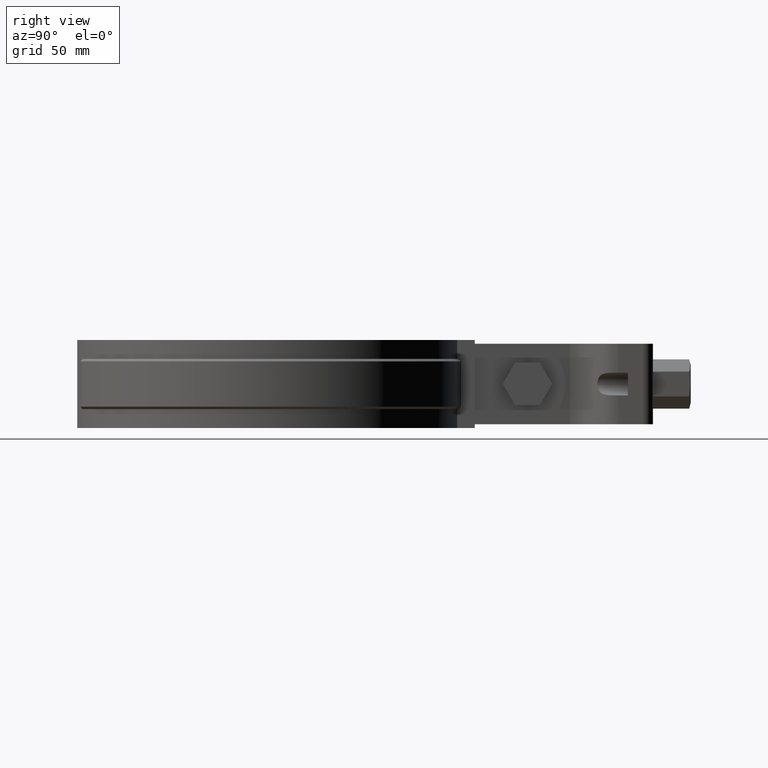
[diagram: clean part render]
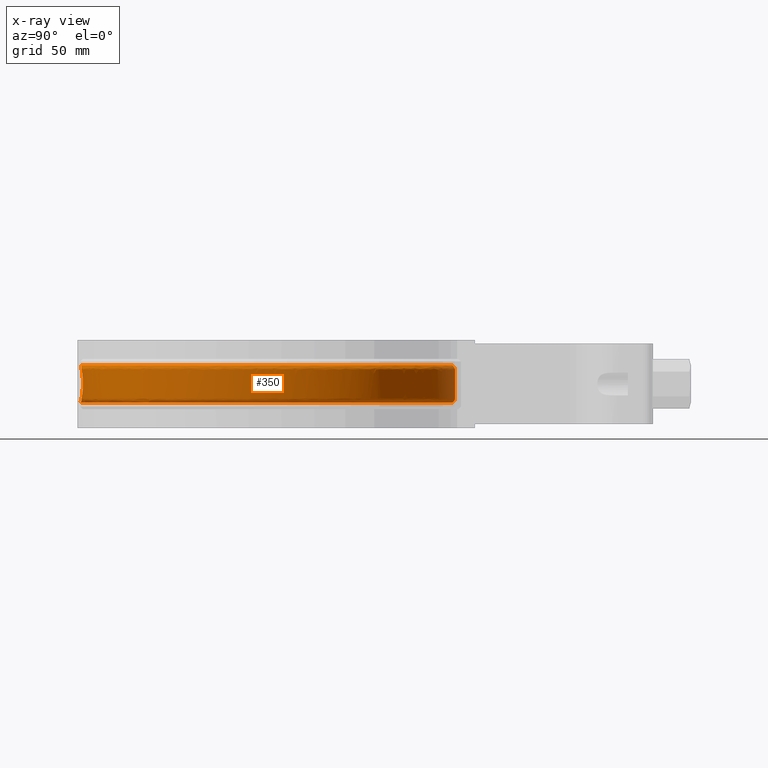
[diagram: x-ray — body ghosted, one internal face saturated and labeled with its STEP entity id]
A machine part, right view, then the same camera in x-ray: the body is ghosted and one INTERNAL B-rep face — a face not visible from any outside direction — is saturated and labeled: STEP entity #350.
In plain terms, the highlighted face is a freeform B-spline surface patch.
Its self-contained STEP definition (entity closure, byte-faithful):
#350 = ADVANCED_FACE( '', ( #571, #572 ), #573, .T. );
#571 = FACE_BOUND( '', #1333, .T. );
#572 = FACE_OUTER_BOUND( '', #1334, .T. );
#573 = B_SPLINE_SURFACE_WITH_KNOTS( '', 3, 3, ( ( #1335, #1336, #1337, #1338, #1339, #1340, #1341, #1342, #1343, #1344, #1345, #1346, #1347, #1348, #1349, #1350, #1351 ), ( #1352, #1353, #1354, #1355, #1356, #1357, #1358, #1359, #1360, #1361, #1362, #1363, #1364, #1365, #1366, #1367, #1368 ), ( #1369, #1370, #1371, #1372, #1373, #1374, #1375, #1376, #1377, #1378, #1379, #1380, #1381, #1382, #1383, #1384, #1385 ), ( #1386, #1387, #1388, #1389, #1390, #1391, #1392, #1393, #1394, #1395, #1396, #1397, #1398, #1399, #1400, #1401, #1402 ), ( #1403, #1404, #1405, #1406, #1407, #1408, #1409, #1410, #1411, #1412, #1413, #1414, #1415, #1416, #1417, #1418, #1419 ), ( #1420, #1421, #1422, #1423, #1424, #1425, #1426, #1427, #1428, #1429, #1430, #1431, #1432, #1433, #1434, #1435, #1436 ), ( #1437, #1438, #1439, #1440, #1441, #1442, #1443, #1444, #1445, #1446, #1447, #1448, #1449, #1450, #1451, #1452, #1453 ), ( #1454, #1455, #1456, #1457, #1458, #1459, #1460, #1461, #1462, #1463, #1464, #1465, #1466, #1467, #1468, #1469, #1470 ), ( #1471, #1472, #1473, #1474, #1475, #1476, #1477, #1478, #1479, #1480, #1481, #1482, #1483, #1484, #1485, #1486, #1487 ), ( #1488, #1489, #1490, #1491, #1492, #1493, #1494, #1495, #1496, #1497, #1498, #1499, #1500, #1501, #1502, #1503, #1504 ), ( #1505, #1506, #1507, #1508, #1509, #1510, #1511, #1512, #1513, #1514, #1515, #1516, #1517, #1518, #1519, #1520, #1521 ), ( #1522, #1523, #1524, #1525, #1526, #1527, #1528, #1529, #1530, #1531, #1532, #1533, #1534, #1535, #1536, #1537, #1538 ), ( #1539, #1540, #1541, #1542, #1543, #1544, #1545, #1546, #1547, #1548, #1549, #1550, #1551, #1552, #1553, #1554, #1555 ), ( #1556, #1557, #1558, #1559, #1560, #1561, #1562, #1563, #1564, #1565, #1566, #1567, #1568, #1569, #1570, #1571, #1572 ), ( #1573, #1574, #1575, #1576, #1577, #1578, #1579, #1580, #1581, #1582, #1583, #1584, #1585, #1586, #1587, #1588, #1589 ), ( #1590, #1591, #1592, #1593, #1594, #1595, #1596, #1597, #1598, #1599, #1600, #1601, #1602, #1603, #1604, #1605, #1606 ), ( #1607, #1608, #1609, #1610, #1611, #1612, #1613, #1614, #1615, #1616, #1617, #1618, #1619, #1620, #1621, #1622, #1623 ), ( #1624, #1625, #1626, #1627, #1628, #1629, #1630, #1631, #1632, #1633, #1634, #1635, #1636, #1637, #1638, #1639, #1640 ), ( #1641, #1642, #1643, #1644, #1645, #1646, #1647, #1648, #1649, #1650, #1651, #1652, #1653, #1654, #1655, #1656, #1657 ), ( #1658, #1659, #1660, #1661, #1662, #1663, #1664, #1665, #1666, #1667, #1668, #1669, #1670, #1671, #1672, #1673, #1674 ), ( #1675, #1676, #1677, #1678, #1679, #1680, #1681, #1682, #1683, #1684, #1685, #1686, #1687, #1688, #1689, #1690, #1691 ), ( #1692, #1693, #1694, #1695, #1696, #1697, #1698, #1699, #1700, #1701, #1702, #1703, #1704, #1705, #1706, #1707, #1708 ) ), .UNSPECIFIED., .F., .F., .F., ( 4, 3, 1, 1, 1, 3, 3, 1, 1, 1, 3, 4 ), ( 4, 1, 1, 1, 1, 1, 1, 1, 1, 1, 1, 1, 1, 1, 4 ), ( 0.000000000000000, 0.0909090909090909, 0.181818181818182, 0.272727272727273, 0.363636363636364, 0.454545454545455, 0.545454545454545, 0.636363636363636, 0.727272727272727, 0.818181818181818, 0.909090909090909, 1.00000000000000 ), ( 2.93919432429586, 4.00000000000000, 5.00000000000000, 6.00000000000000, 7.00000000000000, 8.00000000000000, 9.00000000000000, 10.0000000000000, 11.0000000000000, 12.0000000000000, 13.0000000000000, 14.0000000000000, 15.0000000000000, 16.0000000000000, 17.0000000000000 ), .UNSPECIFIED. );
#1333 = EDGE_LOOP( '', ( #3434, #3435, #3436, #3437, #3438, #3439 ) );
#1334 = EDGE_LOOP( '', ( #3440, #3441, #3442, #3443 ) );
#1335 = CARTESIAN_POINT( '', ( -4.61425015195980, 70.7622317509286, -26.5000000000000 ) );
#1336 = CARTESIAN_POINT( '', ( -15.5904203630949, 70.0470349368722, -26.5000000000000 ) );
#1337 = CARTESIAN_POINT( '', ( -36.6178724669983, 63.5869264265580, -26.5000000000000 ) );
#1338 = CARTESIAN_POINT( '', ( -60.4171282819462, 41.3778170815072, -26.5000000000000 ) );
#1339 = CARTESIAN_POINT( '', ( -72.2798619034494, 11.7564386340877, -26.5000000000000 ) );
#1340 = CARTESIAN_POINT( '', ( -70.4173990652024, -20.0977563256707, -26.5000000000000 ) );
#1341 = CARTESIAN_POINT( '', ( -55.1858107136761, -48.1359457803464, -26.5000000000000 ) );
#1342 = CARTESIAN_POINT( '', ( -29.4763509782398, -67.0349598757568, -26.5000000000000 ) );
#1343 = CARTESIAN_POINT( '', ( 1.82953666322226, -73.2065161750958, -26.5000000000000 ) );
#1344 = CARTESIAN_POINT( '', ( 32.7880639153756, -65.4788766479587, -26.5000000000000 ) );
#1345 = CARTESIAN_POINT( '', ( 57.5213898570196, -45.3192513699048, -26.5000000000000 ) );
#1346 = CARTESIAN_POINT( '', ( 71.3334128422005, -16.5551173620569, -26.5000000000000 ) );
#1347 = CARTESIAN_POINT( '', ( 71.6023635221745, 15.3519610054325, -26.5000000000000 ) );
#1348 = CARTESIAN_POINT( '', ( 58.2748608361785, 44.3452311182272, -26.5000000000000 ) );
#1349 = CARTESIAN_POINT( '', ( 33.8899510704301, 64.9154153993196, -26.5000000000000 ) );
#1350 = CARTESIAN_POINT( '', ( 13.3267450073814, 70.4210865172577, -26.5000000000000 ) );
#1351 = CARTESIAN_POINT( '', ( 2.96461729470620, 70.8501201839495, -26.5000000000000 ) );
#1352 = CARTESIAN_POINT( '', ( -4.58330382231512, 71.8998896366214, -25.3619288125423 ) );
#1353 = CARTESIAN_POINT( '', ( -15.7397192382122, 71.1895043673446, -25.3619288125423 ) );
#1354 = CARTESIAN_POINT( '', ( -37.1081463681043, 64.6569728626535, -25.3619288125423 ) );
#1355 = CARTESIAN_POINT( '', ( -61.3221754302980, 42.1279841595101, -25.3619288125423 ) );
#1356 = CARTESIAN_POINT( '', ( -73.4176082499287, 12.0506522216709, -25.3619288125423 ) );
#1357 = CARTESIAN_POINT( '', ( -71.5723646246281, -20.3153564475006, -25.3619288125423 ) );
#1358 = CARTESIAN_POINT( '', ( -56.1385669859300, -48.8240454349474, -25.3619288125423 ) );
#1359 = CARTESIAN_POINT( '', ( -30.0460432527390, -68.0629145587926, -25.3619288125423 ) );
#1360 = CARTESIAN_POINT( '', ( 1.75108133303469, -74.3791554281481, -25.3619288125423 ) );
#1361 = CARTESIAN_POINT( '', ( 33.2157412539665, -66.5735602607233, -25.3619288125423 ) );
#1362 = CARTESIAN_POINT( '', ( 58.3739903704118, -46.1281382677739, -25.3619288125423 ) );
#1363 = CARTESIAN_POINT( '', ( 72.4490973285679, -16.9246351334278, -25.3619288125423 ) );
#1364 = CARTESIAN_POINT( '', ( 72.7691627760226, 15.4919891642614, -25.3619288125423 ) );
#1365 = CARTESIAN_POINT( '', ( 59.2717740308285, 44.9681477001160, -25.3619288125423 ) );
#1366 = CARTESIAN_POINT( '', ( 34.5257198776660, 65.9032180638756, -25.3619288125423 ) );
#1367 = CARTESIAN_POINT( '', ( 13.6462086014126, 71.5264525608277, -25.3619288125423 ) );
#1368 = CARTESIAN_POINT( '', ( 3.11622377686040, 71.9780481525229, -25.3619288125423 ) );
#1369 = CARTESIAN_POINT( '', ( -4.55235749267045, 73.0375475223142, -24.2238576250846 ) );
#1370 = CARTESIAN_POINT( '', ( -15.8890181133296, 72.3319737978169, -24.2238576250846 ) );
#1371 = CARTESIAN_POINT( '', ( -37.5984202692104, 65.7270192987490, -24.2238576250846 ) );
#1372 = CARTESIAN_POINT( '', ( -62.2272225786497, 42.8781512375131, -24.2238576250846 ) );
#1373 = CARTESIAN_POINT( '', ( -74.5553545964080, 12.3448658092541, -24.2238576250846 ) );
#1374 = CARTESIAN_POINT( '', ( -72.7273301840538, -20.5329565693305, -24.2238576250846 ) );
#1375 = CARTESIAN_POINT( '', ( -57.0913232581840, -49.5121450895483, -24.2238576250846 ) );
#1376 = CARTESIAN_POINT( '', ( -30.6157355272383, -69.0908692418285, -24.2238576250846 ) );
#1377 = CARTESIAN_POINT( '', ( 1.67262600284711, -75.5517946812004, -24.2238576250846 ) );
#1378 = CARTESIAN_POINT( '', ( 33.6434185925574, -67.6682438734879, -24.2238576250846 ) );
#1379 = CARTESIAN_POINT( '', ( 59.2265908838041, -46.9370251656430, -24.2238576250846 ) );
#1380 = CARTESIAN_POINT( '', ( 73.5647818149354, -17.2941529047986, -24.2238576250846 ) );
#1381 = CARTESIAN_POINT( '', ( 73.9359620298707, 15.6320173230902, -24.2238576250846 ) );
#1382 = CARTESIAN_POINT( '', ( 60.2686872254784, 45.5910642820048, -24.2238576250846 ) );
#1383 = CARTESIAN_POINT( '', ( 35.1614886849019, 66.8910207284315, -24.2238576250846 ) );
#1384 = CARTESIAN_POINT( '', ( 13.9656721954438, 72.6318186043977, -24.2238576250846 ) );
#1385 = CARTESIAN_POINT( '', ( 3.26783025901459, 73.1059761210964, -24.2238576250846 ) );
#1386 = CARTESIAN_POINT( '', ( -4.52141116302577, 74.1752054080070, -23.0857864376269 ) );
#1387 = CARTESIAN_POINT( '', ( -16.0383169884469, 73.4744432282892, -23.0857864376269 ) );
#1388 = CARTESIAN_POINT( '', ( -38.0886941703164, 66.7970657348446, -23.0857864376269 ) );
#1389 = CARTESIAN_POINT( '', ( -63.1322697270015, 43.6283183155160, -23.0857864376269 ) );
#1390 = CARTESIAN_POINT( '', ( -75.6931009428873, 12.6390793968372, -23.0857864376269 ) );
#1391 = CARTESIAN_POINT( '', ( -73.8822957434795, -20.7505566911604, -23.0857864376269 ) );
#1392 = CARTESIAN_POINT( '', ( -58.0440795304379, -50.2002447441493, -23.0857864376269 ) );
#1393 = CARTESIAN_POINT( '', ( -31.1854278017375, -70.1188239248644, -23.0857864376269 ) );
#1394 = CARTESIAN_POINT( '', ( 1.59417067265954, -76.7244339342527, -23.0857864376269 ) );
#1395 = CARTESIAN_POINT( '', ( 34.0710959311483, -68.7629274862524, -23.0857864376269 ) );
#1396 = CARTESIAN_POINT( '', ( 60.0791913971964, -47.7459120635122, -23.0857864376269 ) );
#1397 = CARTESIAN_POINT( '', ( 74.6804663013028, -17.6636706761694, -23.0857864376269 ) );
#1398 = CARTESIAN_POINT( '', ( 75.1027612837188, 15.7720454819191, -23.0857864376269 ) );
#1399 = CARTESIAN_POINT( '', ( 61.2656004201283, 46.2139808638935, -23.0857864376269 ) );
#1400 = CARTESIAN_POINT( '', ( 35.7972574921378, 67.8788233929875, -23.0857864376269 ) );
#1401 = CARTESIAN_POINT( '', ( 14.2851357894750, 73.7371846479677, -23.0857864376269 ) );
#1402 = CARTESIAN_POINT( '', ( 3.41943674116879, 74.2339040896698, -23.0857864376269 ) );
#1403 = CARTESIAN_POINT( '', ( -4.51889429902262, 74.2677310875714, -22.9932271442431 ) );
#1404 = CARTESIAN_POINT( '', ( -16.0504594611992, 73.5673602306371, -22.9932271442431 ) );
#1405 = CARTESIAN_POINT( '', ( -38.1285681310589, 66.8840925773693, -22.9932271442431 ) );
#1406 = CARTESIAN_POINT( '', ( -63.2058771827157, 43.6893293800478, -22.9932271442431 ) );
#1407 = CARTESIAN_POINT( '', ( -75.7856338169647, 12.6630077785331, -22.9932271442431 ) );
#1408 = CARTESIAN_POINT( '', ( -73.9762290555967, -20.7682541021297, -22.9932271442431 ) );
#1409 = CARTESIAN_POINT( '', ( -58.1215671676777, -50.2562078671151, -22.9932271442431 ) );
#1410 = CARTESIAN_POINT( '', ( -31.2317608562555, -70.2024274464551, -22.9932271442431 ) );
#1411 = CARTESIAN_POINT( '', ( 1.58778990315726, -76.8198046473089, -22.9932271442431 ) );
#1412 = CARTESIAN_POINT( '', ( 34.1058789154577, -68.8519580695700, -22.9932271442431 ) );
#1413 = CARTESIAN_POINT( '', ( 60.1485333697619, -47.8116988091211, -22.9932271442431 ) );
#1414 = CARTESIAN_POINT( '', ( 74.7712048850009, -17.6937235447314, -22.9932271442431 ) );
#1415 = CARTESIAN_POINT( '', ( 75.1976570298260, 15.7834339676113, -22.9932271442431 ) );
#1416 = CARTESIAN_POINT( '', ( 61.3466793384585, 46.2646426496342, -22.9932271442431 ) );
#1417 = CARTESIAN_POINT( '', ( 35.8489645489562, 67.9591613521956, -22.9932271442431 ) );
#1418 = CARTESIAN_POINT( '', ( 14.3111177533902, 73.8270840330420, -22.9932271442431 ) );
#1419 = CARTESIAN_POINT( '', ( 3.43176689152779, 74.3256384353852, -22.9932271442431 ) );
#1420 = CARTESIAN_POINT( '', ( -4.51435634995178, 74.4345564786465, -22.7898759680773 ) );
#1421 = CARTESIAN_POINT( '', ( -16.0723525483405, 73.7348911834190, -22.7898759680773 ) );
#1422 = CARTESIAN_POINT( '', ( -38.2004615678421, 67.0410034707188, -22.7898759680773 ) );
#1423 = CARTESIAN_POINT( '', ( -63.3385926909225, 43.7993333783792, -22.7898759680773 ) );
#1424 = CARTESIAN_POINT( '', ( -75.9524721798704, 12.7061510621384, -22.7898759680773 ) );
#1425 = CARTESIAN_POINT( '', ( -74.1455924323663, -20.8001628383841, -22.7898759680773 ) );
#1426 = CARTESIAN_POINT( '', ( -58.2612787098881, -50.3571103400123, -22.7898759680773 ) );
#1427 = CARTESIAN_POINT( '', ( -31.3153001501689, -70.3531660333023, -22.7898759680773 ) );
#1428 = CARTESIAN_POINT( '', ( 1.57628526603826, -76.9917596826853, -22.7898759680773 ) );
#1429 = CARTESIAN_POINT( '', ( 34.1685932342012, -69.0124817420199, -22.7898759680773 ) );
#1430 = CARTESIAN_POINT( '', ( 60.2735581385138, -47.9303134425444, -22.7898759680773 ) );
#1431 = CARTESIAN_POINT( '', ( 74.9348081115028, -17.7479093834562, -22.7898759680773 ) );
#1432 = CARTESIAN_POINT( '', ( 75.3687556916270, 15.8039676031197, -22.7898759680773 ) );
#1433 = CARTESIAN_POINT( '', ( 61.4928660222207, 46.3559867203673, -22.7898759680773 ) );
#1434 = CARTESIAN_POINT( '', ( 35.9421932614139, 68.1040120739214, -22.7898759680773 ) );
#1435 = CARTESIAN_POINT( '', ( 14.3579636810445, 73.9891741699969, -22.7898759680773 ) );
#1436 = CARTESIAN_POINT( '', ( 3.45399836462086, 74.4910370379249, -22.7898759680773 ) );
#1437 = CARTESIAN_POINT( '', ( -4.50929834940872, 74.6205001517645, -22.4418734431229 ) );
#1438 = CARTESIAN_POINT( '', ( -16.0967545953714, 73.9216212760054, -22.4418734431229 ) );
#1439 = CARTESIAN_POINT( '', ( -38.2805940322253, 67.2158964391909, -22.4418734431229 ) );
#1440 = CARTESIAN_POINT( '', ( -63.4865174697386, 43.9219438957327, -22.4418734431229 ) );
#1441 = CARTESIAN_POINT( '', ( -76.1384303113979, 12.7542385898956, -22.4418734431229 ) );
#1442 = CARTESIAN_POINT( '', ( -74.3343649457424, -20.8357283334532, -22.4418734431229 ) );
#1443 = CARTESIAN_POINT( '', ( -58.4170012720723, -50.4695762920853, -22.4418734431229 ) );
#1444 = CARTESIAN_POINT( '', ( -31.4084130933477, -70.5211793455347, -22.4418734431229 ) );
#1445 = CARTESIAN_POINT( '', ( 1.56346219114533, -77.1834208601773, -22.4418734431229 ) );
#1446 = CARTESIAN_POINT( '', ( 34.2384946485429, -69.1914015160745, -22.4418734431229 ) );
#1447 = CARTESIAN_POINT( '', ( 60.4129108148818, -48.0625213785315, -22.4418734431229 ) );
#1448 = CARTESIAN_POINT( '', ( 75.1171603582062, -17.8083049492543, -22.4418734431229 ) );
#1449 = CARTESIAN_POINT( '', ( 75.5594623546585, 15.8268544046090, -22.4418734431229 ) );
#1450 = CARTESIAN_POINT( '', ( 61.6558057807582, 46.4577988721040, -22.4418734431229 ) );
#1451 = CARTESIAN_POINT( '', ( 36.0461060358587, 68.2654627684344, -22.4418734431229 ) );
#1452 = CARTESIAN_POINT( '', ( 14.4101781779057, 74.1698399262547, -22.4418734431229 ) );
#1453 = CARTESIAN_POINT( '', ( 3.47877757682057, 74.6753904117525, -22.4418734431229 ) );
#1454 = CARTESIAN_POINT( '', ( -4.50618364805317, 74.7350037003084, -22.0642686993349 ) );
#1455 = CARTESIAN_POINT( '', ( -16.1117813017385, 74.0366090992668, -22.0642686993349 ) );
#1456 = CARTESIAN_POINT( '', ( -38.3299393601495, 67.3235949974134, -22.0642686993349 ) );
#1457 = CARTESIAN_POINT( '', ( -63.5776090987679, 43.9974470795214, -22.0642686993349 ) );
#1458 = CARTESIAN_POINT( '', ( -76.2529427633863, 12.7838507432782, -22.0642686993349 ) );
#1459 = CARTESIAN_POINT( '', ( -74.4506104855162, -20.8576294571798, -22.0642686993349 ) );
#1460 = CARTESIAN_POINT( '', ( -58.5128947523905, -50.5388324834188, -22.0642686993349 ) );
#1461 = CARTESIAN_POINT( '', ( -31.4657517606470, -70.6246414323625, -22.0642686993349 ) );
#1462 = CARTESIAN_POINT( '', ( 1.55556578061486, -77.3014452305305, -22.0642686993349 ) );
#1463 = CARTESIAN_POINT( '', ( 34.2815397269591, -69.3015797689313, -22.0642686993349 ) );
#1464 = CARTESIAN_POINT( '', ( 60.4987237692871, -48.1439346235337, -22.0642686993349 ) );
#1465 = CARTESIAN_POINT( '', ( 75.2294523172837, -17.8454963550399, -22.0642686993349 ) );
#1466 = CARTESIAN_POINT( '', ( 75.6768989379091, 15.8409480273788, -22.0642686993349 ) );
#1467 = CARTESIAN_POINT( '', ( 61.7561435886468, 46.5204944855832, -22.0642686993349 ) );
#1468 = CARTESIAN_POINT( '', ( 36.1100952064147, 68.3648836152243, -22.0642686993349 ) );
#1469 = CARTESIAN_POINT( '', ( 14.4423317063145, 74.2810933496436, -22.0642686993349 ) );
#1470 = CARTESIAN_POINT( '', ( 3.49403654035189, 74.7889146588287, -22.0642686993349 ) );
#1471 = CARTESIAN_POINT( '', ( -4.50548251075870, 74.7607791115174, -21.8024714832808 ) );
#1472 = CARTESIAN_POINT( '', ( -16.1151639002750, 74.0624935235164, -21.8024714832808 ) );
#1473 = CARTESIAN_POINT( '', ( -38.3410472789404, 67.3478385659326, -21.8024714832808 ) );
#1474 = CARTESIAN_POINT( '', ( -63.5981143514503, 44.0144432829971, -21.8024714832808 ) );
#1475 = CARTESIAN_POINT( '', ( -76.2787201788122, 12.7905166103184, -21.8024714832808 ) );
#1476 = CARTESIAN_POINT( '', ( -74.4767780290289, -20.8625595268342, -21.8024714832809 ) );
#1477 = CARTESIAN_POINT( '', ( -58.5344809295780, -50.5544224527524, -21.8024714832808 ) );
#1478 = CARTESIAN_POINT( '', ( -31.4786590263747, -70.6479313466616, -21.8024714832808 ) );
#1479 = CARTESIAN_POINT( '', ( 1.55378825292173, -77.3280131990977, -21.8024714832808 ) );
#1480 = CARTESIAN_POINT( '', ( 34.2912294231372, -69.3263815310582, -21.8024714832808 ) );
#1481 = CARTESIAN_POINT( '', ( 60.5180407617732, -48.1622612159798, -21.8024714832808 ) );
#1482 = CARTESIAN_POINT( '', ( 75.2547298869092, -17.8538683556438, -21.8024714832808 ) );
#1483 = CARTESIAN_POINT( '', ( 75.7033345921990, 15.8441205833994, -21.8024714832808 ) );
#1484 = CARTESIAN_POINT( '', ( 61.7787302096819, 46.5346076308873, -21.8024714832809 ) );
#1485 = CARTESIAN_POINT( '', ( 36.1244995389003, 68.3872638230112, -21.8024714832808 ) );
#1486 = CARTESIAN_POINT( '', ( 14.4495696515756, 74.3061371388774, -21.8024714832808 ) );
#1487 = CARTESIAN_POINT( '', ( 3.49747142131972, 74.8144696236118, -21.8024714832808 ) );
#1488 = CARTESIAN_POINT( '', ( -4.50548251075870, 74.7607791115174, -21.6715728752538 ) );
#1489 = CARTESIAN_POINT( '', ( -16.1151639002750, 74.0624935235164, -21.6715728752538 ) );
#1490 = CARTESIAN_POINT( '', ( -38.3410472789404, 67.3478385659326, -21.6715728752538 ) );
#1491 = CARTESIAN_POINT( '', ( -63.5981143514503, 44.0144432829971, -21.6715728752538 ) );
#1492 = CARTESIAN_POINT( '', ( -76.2787201788122, 12.7905166103184, -21.6715728752538 ) );
#1493 = CARTESIAN_POINT( '', ( -74.4767780290289, -20.8625595268342, -21.6715728752538 ) );
#1494 = CARTESIAN_POINT( '', ( -58.5344809295780, -50.5544224527524, -21.6715728752538 ) );
#1495 = CARTESIAN_POINT( '', ( -31.4786590263747, -70.6479313466616, -21.6715728752538 ) );
#1496 = CARTESIAN_POINT( '', ( 1.55378825292173, -77.3280131990977, -21.6715728752538 ) );
#1497 = CARTESIAN_POINT( '', ( 34.2912294231372, -69.3263815310582, -21.6715728752538 ) );
#1498 = CARTESIAN_POINT( '', ( 60.5180407617732, -48.1622612159798, -21.6715728752538 ) );
#1499 = CARTESIAN_POINT( '', ( 75.2547298869092, -17.8538683556438, -21.6715728752538 ) );
#1500 = CARTESIAN_POINT( '', ( 75.7033345921990, 15.8441205833994, -21.6715728752538 ) );
#1501 = CARTESIAN_POINT( '', ( 61.7787302096819, 46.5346076308873, -21.6715728752538 ) );
#1502 = CARTESIAN_POINT( '', ( 36.1244995389003, 68.3872638230112, -21.6715728752538 ) );
#1503 = CARTESIAN_POINT( '', ( 14.4495696515756, 74.3061371388774, -21.6715728752538 ) );
#1504 = CARTESIAN_POINT( '', ( 3.49747142131972, 74.8144696236118, -21.6715728752538 ) );
#1505 = CARTESIAN_POINT( '', ( -4.50548251075870, 74.7607791115174, -17.8905242917513 ) );
#1506 = CARTESIAN_POINT( '', ( -16.1151639002750, 74.0624935235164, -17.8905242917513 ) );
#1507 = CARTESIAN_POINT( '', ( -38.3410472789404, 67.3478385659326, -17.8905242917513 ) );
#1508 = CARTESIAN_POINT( '', ( -63.5981143514503, 44.0144432829971, -17.8905242917513 ) );
#1509 = CARTESIAN_POINT( '', ( -76.2787201788122, 12.7905166103184, -17.8905242917513 ) );
#1510 = CARTESIAN_POINT( '', ( -74.4767780290289, -20.8625595268342, -17.8905242917513 ) );
#1511 = CARTESIAN_POINT( '', ( -58.5344809295780, -50.5544224527524, -17.8905242917513 ) );
#1512 = CARTESIAN_POINT( '', ( -31.4786590263747, -70.6479313466616, -17.8905242917513 ) );
#1513 = CARTESIAN_POINT( '', ( 1.55378825292173, -77.3280131990977, -17.8905242917513 ) );
#1514 = CARTESIAN_POINT( '', ( 34.2912294231372, -69.3263815310582, -17.8905242917513 ) );
#1515 = CARTESIAN_POINT( '', ( 60.5180407617732, -48.1622612159798, -17.8905242917513 ) );
#1516 = CARTESIAN_POINT( '', ( 75.2547298869093, -17.8538683556439, -17.8905242917513 ) );
#1517 = CARTESIAN_POINT( '', ( 75.7033345921990, 15.8441205833994, -17.8905242917512 ) );
#1518 = CARTESIAN_POINT( '', ( 61.7787302096820, 46.5346076308873, -17.8905242917513 ) );
#1519 = CARTESIAN_POINT( '', ( 36.1244995389003, 68.3872638230113, -17.8905242917513 ) );
#1520 = CARTESIAN_POINT( '', ( 14.4495696515756, 74.3061371388774, -17.8905242917513 ) );
#1521 = CARTESIAN_POINT( '', ( 3.49747142131972, 74.8144696236118, -17.8905242917513 ) );
#1522 = CARTESIAN_POINT( '', ( -4.50548251075870, 74.7607791115174, -14.1094757082487 ) );
#1523 = CARTESIAN_POINT( '', ( -16.1151639002750, 74.0624935235164, -14.1094757082487 ) );
#1524 = CARTESIAN_POINT( '', ( -38.3410472789404, 67.3478385659326, -14.1094757082487 ) );
#1525 = CARTESIAN_POINT( '', ( -63.5981143514503, 44.0144432829971, -14.1094757082487 ) );
#1526 = CARTESIAN_POINT( '', ( -76.2787201788122, 12.7905166103184, -14.1094757082487 ) );
#1527 = CARTESIAN_POINT( '', ( -74.4767780290289, -20.8625595268342, -14.1094757082487 ) );
#1528 = CARTESIAN_POINT( '', ( -58.5344809295780, -50.5544224527524, -14.1094757082487 ) );
#1529 = CARTESIAN_POINT( '', ( -31.4786590263747, -70.6479313466616, -14.1094757082487 ) );
#1530 = CARTESIAN_POINT( '', ( 1.55378825292173, -77.3280131990977, -14.1094757082487 ) );
#1531 = CARTESIAN_POINT( '', ( 34.2912294231372, -69.3263815310582, -14.1094757082487 ) );
#1532 = CARTESIAN_POINT( '', ( 60.5180407617732, -48.1622612159798, -14.1094757082487 ) );
#1533 = CARTESIAN_POINT( '', ( 75.2547298869093, -17.8538683556439, -14.1094757082487 ) );
#1534 = CARTESIAN_POINT( '', ( 75.7033345921990, 15.8441205833994, -14.1094757082487 ) );
#1535 = CARTESIAN_POINT( '', ( 61.7787302096820, 46.5346076308873, -14.1094757082487 ) );
#1536 = CARTESIAN_POINT( '', ( 36.1244995389003, 68.3872638230113, -14.1094757082487 ) );
#1537 = CARTESIAN_POINT( '', ( 14.4495696515756, 74.3061371388774, -14.1094757082487 ) );
#1538 = CARTESIAN_POINT( '', ( 3.49747142131972, 74.8144696236118, -14.1094757082487 ) );
#1539 = CARTESIAN_POINT( '', ( -4.50548251075870, 74.7607791115174, -10.3284271247462 ) );
#1540 = CARTESIAN_POINT( '', ( -16.1151639002750, 74.0624935235164, -10.3284271247462 ) );
#1541 = CARTESIAN_POINT( '', ( -38.3410472789404, 67.3478385659326, -10.3284271247462 ) );
#1542 = CARTESIAN_POINT( '', ( -63.5981143514503, 44.0144432829971, -10.3284271247462 ) );
#1543 = CARTESIAN_POINT( '', ( -76.2787201788122, 12.7905166103184, -10.3284271247462 ) );
#1544 = CARTESIAN_POINT( '', ( -74.4767780290289, -20.8625595268342, -10.3284271247462 ) );
#1545 = CARTESIAN_POINT( '', ( -58.5344809295780, -50.5544224527524, -10.3284271247462 ) );
#1546 = CARTESIAN_POINT( '', ( -31.4786590263747, -70.6479313466616, -10.3284271247462 ) );
#1547 = CARTESIAN_POINT( '', ( 1.55378825292173, -77.3280131990977, -10.3284271247462 ) );
#1548 = CARTESIAN_POINT( '', ( 34.2912294231372, -69.3263815310582, -10.3284271247462 ) );
#1549 = CARTESIAN_POINT( '', ( 60.5180407617732, -48.1622612159798, -10.3284271247462 ) );
#1550 = CARTESIAN_POINT( '', ( 75.2547298869093, -17.8538683556439, -10.3284271247462 ) );
#1551 = CARTESIAN_POINT( '', ( 75.7033345921990, 15.8441205833994, -10.3284271247462 ) );
#1552 = CARTESIAN_POINT( '', ( 61.7787302096820, 46.5346076308873, -10.3284271247462 ) );
#1553 = CARTESIAN_POINT( '', ( 36.1244995389003, 68.3872638230113, -10.3284271247462 ) );
#1554 = CARTESIAN_POINT( '', ( 14.4495696515756, 74.3061371388774, -10.3284271247462 ) );
#1555 = CARTESIAN_POINT( '', ( 3.49747142131972, 74.8144696236118, -10.3284271247462 ) );
#1556 = CARTESIAN_POINT( '', ( -4.50548251075870, 74.7607791115174, -10.1975285167192 ) );
#1557 = CARTESIAN_POINT( '', ( -16.1151639002750, 74.0624935235164, -10.1975285167192 ) );
#1558 = CARTESIAN_POINT( '', ( -38.3410472789404, 67.3478385659326, -10.1975285167192 ) );
#1559 = CARTESIAN_POINT( '', ( -63.5981143514503, 44.0144432829971, -10.1975285167192 ) );
#1560 = CARTESIAN_POINT( '', ( -76.2787201788122, 12.7905166103184, -10.1975285167192 ) );
#1561 = CARTESIAN_POINT( '', ( -74.4767780290289, -20.8625595268342, -10.1975285167192 ) );
#1562 = CARTESIAN_POINT( '', ( -58.5344809295780, -50.5544224527524, -10.1975285167192 ) );
#1563 = CARTESIAN_POINT( '', ( -31.4786590263747, -70.6479313466616, -10.1975285167192 ) );
#1564 = CARTESIAN_POINT( '', ( 1.55378825292173, -77.3280131990977, -10.1975285167192 ) );
#1565 = CARTESIAN_POINT( '', ( 34.2912294231372, -69.3263815310582, -10.1975285167192 ) );
#1566 = CARTESIAN_POINT( '', ( 60.5180407617732, -48.1622612159798, -10.1975285167192 ) );
#1567 = CARTESIAN_POINT( '', ( 75.2547298869093, -17.8538683556439, -10.1975285167192 ) );
#1568 = CARTESIAN_POINT( '', ( 75.7033345921990, 15.8441205833994, -10.1975285167192 ) );
#1569 = CARTESIAN_POINT( '', ( 61.7787302096820, 46.5346076308873, -10.1975285167192 ) );
#1570 = CARTESIAN_POINT( '', ( 36.1244995389003, 68.3872638230113, -10.1975285167192 ) );
#1571 = CARTESIAN_POINT( '', ( 14.4495696515756, 74.3061371388774, -10.1975285167192 ) );
#1572 = CARTESIAN_POINT( '', ( 3.49747142131972, 74.8144696236118, -10.1975285167192 ) );
#1573 = CARTESIAN_POINT( '', ( -4.50618364805317, 74.7350037003084, -9.93573130066510 ) );
#1574 = CARTESIAN_POINT( '', ( -16.1117813017385, 74.0366090992668, -9.93573130066509 ) );
#1575 = CARTESIAN_POINT( '', ( -38.3299393601495, 67.3235949974135, -9.93573130066510 ) );
#1576 = CARTESIAN_POINT( '', ( -63.5776090987679, 43.9974470795214, -9.93573130066509 ) );
#1577 = CARTESIAN_POINT( '', ( -76.2529427633863, 12.7838507432782, -9.93573130066510 ) );
#1578 = CARTESIAN_POINT( '', ( -74.4506104855162, -20.8576294571798, -9.93573130066510 ) );
#1579 = CARTESIAN_POINT( '', ( -58.5128947523905, -50.5388324834188, -9.93573130066509 ) );
#1580 = CARTESIAN_POINT( '', ( -31.4657517606470, -70.6246414323625, -9.93573130066510 ) );
#1581 = CARTESIAN_POINT( '', ( 1.55556578061486, -77.3014452305306, -9.93573130066509 ) );
#1582 = CARTESIAN_POINT( '', ( 34.2815397269591, -69.3015797689313, -9.93573130066509 ) );
#1583 = CARTESIAN_POINT( '', ( 60.4987237692871, -48.1439346235337, -9.93573130066510 ) );
#1584 = CARTESIAN_POINT( '', ( 75.2294523172837, -17.8454963550399, -9.93573130066509 ) );
#1585 = CARTESIAN_POINT( '', ( 75.6768989379092, 15.8409480273788, -9.93573130066509 ) );
#1586 = CARTESIAN_POINT( '', ( 61.7561435886468, 46.5204944855833, -9.93573130066510 ) );
#1587 = CARTESIAN_POINT( '', ( 36.1100952064147, 68.3648836152242, -9.93573130066510 ) );
#1588 = CARTESIAN_POINT( '', ( 14.4423317063145, 74.2810933496436, -9.93573130066510 ) );
#1589 = CARTESIAN_POINT( '', ( 3.49403654035189, 74.7889146588287, -9.93573130066510 ) );
#1590 = CARTESIAN_POINT( '', ( -4.50929834940872, 74.6205001517646, -9.55812655687707 ) );
#1591 = CARTESIAN_POINT( '', ( -16.0967545953714, 73.9216212760054, -9.55812655687707 ) );
#1592 = CARTESIAN_POINT( '', ( -38.2805940322253, 67.2158964391909, -9.55812655687707 ) );
#1593 = CARTESIAN_POINT( '', ( -63.4865174697386, 43.9219438957327, -9.55812655687707 ) );
#1594 = CARTESIAN_POINT( '', ( -76.1384303113979, 12.7542385898956, -9.55812655687707 ) );
#1595 = CARTESIAN_POINT( '', ( -74.3343649457424, -20.8357283334532, -9.55812655687708 ) );
#1596 = CARTESIAN_POINT( '', ( -58.4170012720724, -50.4695762920853, -9.55812655687707 ) );
#1597 = CARTESIAN_POINT( '', ( -31.4084130933477, -70.5211793455347, -9.55812655687708 ) );
#1598 = CARTESIAN_POINT( '', ( 1.56346219114533, -77.1834208601773, -9.55812655687707 ) );
#1599 = CARTESIAN_POINT( '', ( 34.2384946485429, -69.1914015160745, -9.55812655687707 ) );
#1600 = CARTESIAN_POINT( '', ( 60.4129108148818, -48.0625213785315, -9.55812655687707 ) );
#1601 = CARTESIAN_POINT( '', ( 75.1171603582062, -17.8083049492543, -9.55812655687707 ) );
#1602 = CARTESIAN_POINT( '', ( 75.5594623546585, 15.8268544046090, -9.55812655687706 ) );
#1603 = CARTESIAN_POINT( '', ( 61.6558057807582, 46.4577988721040, -9.55812655687708 ) );
#1604 = CARTESIAN_POINT( '', ( 36.0461060358587, 68.2654627684344, -9.55812655687707 ) );
#1605 = CARTESIAN_POINT( '', ( 14.4101781779057, 74.1698399262547, -9.55812655687707 ) );
#1606 = CARTESIAN_POINT( '', ( 3.47877757682057, 74.6753904117525, -9.55812655687707 ) );
#1607 = CARTESIAN_POINT( '', ( -4.51435634995178, 74.4345564786465, -9.21012403192272 ) );
#1608 = CARTESIAN_POINT( '', ( -16.0723525483405, 73.7348911834190, -9.21012403192272 ) );
#1609 = CARTESIAN_POINT( '', ( -38.2004615678421, 67.0410034707188, -9.21012403192272 ) );
#1610 = CARTESIAN_POINT( '', ( -63.3385926909225, 43.7993333783792, -9.21012403192272 ) );
#1611 = CARTESIAN_POINT( '', ( -75.9524721798704, 12.7061510621384, -9.21012403192272 ) );
#1612 = CARTESIAN_POINT( '', ( -74.1455924323663, -20.8001628383841, -9.21012403192273 ) );
#1613 = CARTESIAN_POINT( '', ( -58.2612787098881, -50.3571103400123, -9.21012403192272 ) );
#1614 = CARTESIAN_POINT( '', ( -31.3153001501689, -70.3531660333023, -9.21012403192272 ) );
#1615 = CARTESIAN_POINT( '', ( 1.57628526603826, -76.9917596826853, -9.21012403192272 ) );
#1616 = CARTESIAN_POINT( '', ( 34.1685932342012, -69.0124817420199, -9.21012403192272 ) );
#1617 = CARTESIAN_POINT( '', ( 60.2735581385138, -47.9303134425444, -9.21012403192272 ) );
#1618 = CARTESIAN_POINT( '', ( 74.9348081115028, -17.7479093834562, -9.21012403192272 ) );
#1619 = CARTESIAN_POINT( '', ( 75.3687556916270, 15.8039676031197, -9.21012403192272 ) );
#1620 = CARTESIAN_POINT( '', ( 61.4928660222207, 46.3559867203673, -9.21012403192273 ) );
#1621 = CARTESIAN_POINT( '', ( 35.9421932614139, 68.1040120739214, -9.21012403192272 ) );
#1622 = CARTESIAN_POINT( '', ( 14.3579636810445, 73.9891741699969, -9.21012403192272 ) );
#1623 = CARTESIAN_POINT( '', ( 3.45399836462086, 74.4910370379249, -9.21012403192272 ) );
#1624 = CARTESIAN_POINT( '', ( -4.51889429902262, 74.2677310875714, -9.00677285575689 ) );
#1625 = CARTESIAN_POINT( '', ( -16.0504594611992, 73.5673602306371, -9.00677285575689 ) );
#1626 = CARTESIAN_POINT( '', ( -38.1285681310589, 66.8840925773693, -9.00677285575690 ) );
#1627 = CARTESIAN_POINT( '', ( -63.2058771827157, 43.6893293800478, -9.00677285575689 ) );
#1628 = CARTESIAN_POINT( '', ( -75.7856338169647, 12.6630077785331, -9.00677285575689 ) );
#1629 = CARTESIAN_POINT( '', ( -73.9762290555967, -20.7682541021297, -9.00677285575690 ) );
#1630 = CARTESIAN_POINT( '', ( -58.1215671676777, -50.2562078671151, -9.00677285575689 ) );
#1631 = CARTESIAN_POINT( '', ( -31.2317608562555, -70.2024274464551, -9.00677285575690 ) );
#1632 = CARTESIAN_POINT( '', ( 1.58778990315726, -76.8198046473089, -9.00677285575689 ) );
#1633 = CARTESIAN_POINT( '', ( 34.1058789154577, -68.8519580695700, -9.00677285575690 ) );
#1634 = CARTESIAN_POINT( '', ( 60.1485333697619, -47.8116988091211, -9.00677285575689 ) );
#1635 = CARTESIAN_POINT( '', ( 74.7712048850009, -17.6937235447314, -9.00677285575689 ) );
#1636 = CARTESIAN_POINT( '', ( 75.1976570298260, 15.7834339676113, -9.00677285575689 ) );
#1637 = CARTESIAN_POINT( '', ( 61.3466793384585, 46.2646426496342, -9.00677285575690 ) );
#1638 = CARTESIAN_POINT( '', ( 35.8489645489562, 67.9591613521956, -9.00677285575689 ) );
#1639 = CARTESIAN_POINT( '', ( 14.3111177533902, 73.8270840330420, -9.00677285575689 ) );
#1640 = CARTESIAN_POINT( '', ( 3.43176689152779, 74.3256384353852, -9.00677285575689 ) );
#1641 = CARTESIAN_POINT( '', ( -4.52141116302577, 74.1752054080070, -8.91421356237310 ) );
#1642 = CARTESIAN_POINT( '', ( -16.0383169884469, 73.4744432282892, -8.91421356237310 ) );
#1643 = CARTESIAN_POINT( '', ( -38.0886941703164, 66.7970657348446, -8.91421356237310 ) );
#1644 = CARTESIAN_POINT( '', ( -63.1322697270015, 43.6283183155160, -8.91421356237310 ) );
#1645 = CARTESIAN_POINT( '', ( -75.6931009428873, 12.6390793968372, -8.91421356237310 ) );
#1646 = CARTESIAN_POINT( '', ( -73.8822957434795, -20.7505566911604, -8.91421356237310 ) );
#1647 = CARTESIAN_POINT( '', ( -58.0440795304379, -50.2002447441493, -8.91421356237310 ) );
#1648 = CARTESIAN_POINT( '', ( -31.1854278017375, -70.1188239248644, -8.91421356237310 ) );
#1649 = CARTESIAN_POINT( '', ( 1.59417067265954, -76.7244339342527, -8.91421356237310 ) );
#1650 = CARTESIAN_POINT( '', ( 34.0710959311483, -68.7629274862524, -8.91421356237310 ) );
#1651 = CARTESIAN_POINT( '', ( 60.0791913971964, -47.7459120635122, -8.91421356237310 ) );
#1652 = CARTESIAN_POINT( '', ( 74.6804663013028, -17.6636706761694, -8.91421356237310 ) );
#1653 = CARTESIAN_POINT( '', ( 75.1027612837188, 15.7720454819191, -8.91421356237309 ) );
#1654 = CARTESIAN_POINT( '', ( 61.2656004201283, 46.2139808638935, -8.91421356237310 ) );
#1655 = CARTESIAN_POINT( '', ( 35.7972574921378, 67.8788233929875, -8.91421356237310 ) );
#1656 = CARTESIAN_POINT( '', ( 14.2851357894750, 73.7371846479677, -8.91421356237310 ) );
#1657 = CARTESIAN_POINT( '', ( 3.41943674116879, 74.2339040896698, -8.91421356237310 ) );
#1658 = CARTESIAN_POINT( '', ( -4.55235749267045, 73.0375475223142, -7.77614237491542 ) );
#1659 = CARTESIAN_POINT( '', ( -15.8890181133296, 72.3319737978169, -7.77614237491542 ) );
#1660 = CARTESIAN_POINT( '', ( -37.5984202692104, 65.7270192987491, -7.77614237491542 ) );
#1661 = CARTESIAN_POINT( '', ( -62.2272225786497, 42.8781512375131, -7.77614237491542 ) );
#1662 = CARTESIAN_POINT( '', ( -74.5553545964081, 12.3448658092541, -7.77614237491542 ) );
#1663 = CARTESIAN_POINT( '', ( -72.7273301840538, -20.5329565693305, -7.77614237491542 ) );
#1664 = CARTESIAN_POINT( '', ( -57.0913232581840, -49.5121450895484, -7.77614237491542 ) );
#1665 = CARTESIAN_POINT( '', ( -30.6157355272383, -69.0908692418285, -7.77614237491542 ) );
#1666 = CARTESIAN_POINT( '', ( 1.67262600284711, -75.5517946812004, -7.77614237491542 ) );
#1667 = CARTESIAN_POINT( '', ( 33.6434185925574, -67.6682438734879, -7.77614237491542 ) );
#1668 = CARTESIAN_POINT( '', ( 59.2265908838041, -46.9370251656431, -7.77614237491542 ) );
#1669 = CARTESIAN_POINT( '', ( 73.5647818149354, -17.2941529047986, -7.77614237491542 ) );
#1670 = CARTESIAN_POINT( '', ( 73.9359620298707, 15.6320173230902, -7.77614237491541 ) );
#1671 = CARTESIAN_POINT( '', ( 60.2686872254784, 45.5910642820048, -7.77614237491542 ) );
#1672 = CARTESIAN_POINT( '', ( 35.1614886849019, 66.8910207284315, -7.77614237491542 ) );
#1673 = CARTESIAN_POINT( '', ( 13.9656721954438, 72.6318186043977, -7.77614237491542 ) );
#1674 = CARTESIAN_POINT( '', ( 3.26783025901460, 73.1059761210964, -7.77614237491542 ) );
#1675 = CARTESIAN_POINT( '', ( -4.58330382231512, 71.8998896366214, -6.63807118745772 ) );
#1676 = CARTESIAN_POINT( '', ( -15.7397192382122, 71.1895043673446, -6.63807118745772 ) );
#1677 = CARTESIAN_POINT( '', ( -37.1081463681043, 64.6569728626535, -6.63807118745773 ) );
#1678 = CARTESIAN_POINT( '', ( -61.3221754302980, 42.1279841595102, -6.63807118745772 ) );
#1679 = CARTESIAN_POINT( '', ( -73.4176082499288, 12.0506522216709, -6.63807118745772 ) );
#1680 = CARTESIAN_POINT( '', ( -71.5723646246281, -20.3153564475006, -6.63807118745773 ) );
#1681 = CARTESIAN_POINT( '', ( -56.1385669859300, -48.8240454349474, -6.63807118745772 ) );
#1682 = CARTESIAN_POINT( '', ( -30.0460432527390, -68.0629145587926, -6.63807118745773 ) );
#1683 = CARTESIAN_POINT( '', ( 1.75108133303468, -74.3791554281481, -6.63807118745772 ) );
#1684 = CARTESIAN_POINT( '', ( 33.2157412539665, -66.5735602607233, -6.63807118745773 ) );
#1685 = CARTESIAN_POINT( '', ( 58.3739903704119, -46.1281382677739, -6.63807118745773 ) );
#1686 = CARTESIAN_POINT( '', ( 72.4490973285679, -16.9246351334278, -6.63807118745772 ) );
#1687 = CARTESIAN_POINT( '', ( 72.7691627760226, 15.4919891642614, -6.63807118745772 ) );
#1688 = CARTESIAN_POINT( '', ( 59.2717740308285, 44.9681477001160, -6.63807118745773 ) );
#1689 = CARTESIAN_POINT( '', ( 34.5257198776660, 65.9032180638756, -6.63807118745773 ) );
#1690 = CARTESIAN_POINT( '', ( 13.6462086014126, 71.5264525608277, -6.63807118745772 ) );
#1691 = CARTESIAN_POINT( '', ( 3.11622377686040, 71.9780481525230, -6.63807118745772 ) );
#1692 = CARTESIAN_POINT( '', ( -4.61425015195980, 70.7622317509286, -5.50000000000003 ) );
#1693 = CARTESIAN_POINT( '', ( -15.5904203630949, 70.0470349368723, -5.50000000000003 ) );
#1694 = CARTESIAN_POINT( '', ( -36.6178724669983, 63.5869264265580, -5.50000000000003 ) );
#1695 = CARTESIAN_POINT( '', ( -60.4171282819462, 41.3778170815072, -5.50000000000003 ) );
#1696 = CARTESIAN_POINT( '', ( -72.2798619034495, 11.7564386340877, -5.50000000000003 ) );
#1697 = CARTESIAN_POINT( '', ( -70.4173990652024, -20.0977563256707, -5.50000000000003 ) );
#1698 = CARTESIAN_POINT( '', ( -55.1858107136761, -48.1359457803465, -5.50000000000003 ) );
#1699 = CARTESIAN_POINT( '', ( -29.4763509782398, -67.0349598757568, -5.50000000000003 ) );
#1700 = CARTESIAN_POINT( '', ( 1.82953666322226, -73.2065161750958, -5.50000000000003 ) );
#1701 = CARTESIAN_POINT( '', ( 32.7880639153756, -65.4788766479587, -5.50000000000003 ) );
#1702 = CARTESIAN_POINT( '', ( 57.5213898570196, -45.3192513699048, -5.50000000000003 ) );
#1703 = CARTESIAN_POINT( '', ( 71.3334128422005, -16.5551173620569, -5.50000000000003 ) );
#1704 = CARTESIAN_POINT( '', ( 71.6023635221745, 15.3519610054325, -5.50000000000003 ) );
#1705 = CARTESIAN_POINT( '', ( 58.2748608361786, 44.3452311182273, -5.50000000000003 ) );
#1706 = CARTESIAN_POINT( '', ( 33.8899510704301, 64.9154153993196, -5.50000000000003 ) );
#1707 = CARTESIAN_POINT( '', ( 13.3267450073814, 70.4210865172577, -5.50000000000003 ) );
#1708 = CARTESIAN_POINT( '', ( 2.96461729470620, 70.8501201839495, -5.50000000000003 ) );
#3434 = ORIENTED_EDGE( '', *, *, #5079, .F. );
#3435 = ORIENTED_EDGE( '', *, *, #5077, .F. );
#3436 = ORIENTED_EDGE( '', *, *, #5074, .F. );
#3437 = ORIENTED_EDGE( '', *, *, #5068, .F. );
#3438 = ORIENTED_EDGE( '', *, *, #5066, .F. );
#3439 = ORIENTED_EDGE( '', *, *, #5080, .F. );
#3440 = ORIENTED_EDGE( '', *, *, #5081, .F. );
#3441 = ORIENTED_EDGE( '', *, *, #5082, .F. );
#3442 = ORIENTED_EDGE( '', *, *, #5083, .F. );
#3443 = ORIENTED_EDGE( '', *, *, #5084, .F. );
#5066 = EDGE_CURVE( '', #5612, #5614, #5615, .T. );
#5068 = EDGE_CURVE( '', #5614, #5617, #5618, .T. );
#5074 = EDGE_CURVE( '', #5617, #5627, #5628, .T. );
#5077 = EDGE_CURVE( '', #5627, #5632, #5633, .T. );
#5079 = EDGE_CURVE( '', #5632, #5635, #5636, .T. );
#5080 = EDGE_CURVE( '', #5635, #5612, #5637, .T. );
#5081 = EDGE_CURVE( '', #5638, #5639, #5640, .T. );
#5082 = EDGE_CURVE( '', #5641, #5638, #5642, .T. );
#5083 = EDGE_CURVE( '', #5643, #5641, #5644, .T. );
#5084 = EDGE_CURVE( '', #5639, #5643, #5645, .T. );
#5612 = VERTEX_POINT( '', #7493 );
#5614 = VERTEX_POINT( '', #7496 );
#5615 = B_SPLINE_CURVE_WITH_KNOTS( '', 3, ( #7497, #7498, #7499, #7500, #7501, #7502, #7503, #7504, #7505, #7506, #7507, #7508, #7509, #7510, #7511, #7512, #7513, #7514, #7515, #7516, #7517 ), .UNSPECIFIED., .F., .F., ( 4, 2, 2, 2, 2, 1, 2, 2, 2, 2, 4 ), ( 3.46944695195361E-018, 0.00137877618133595, 0.00275755236267191, 0.00413632854400786, 0.00482571663467583, 0.00551510472534380, 0.00620449281601177, 0.00689388090667974, 0.00827265708801568, 0.00965143326935161, 0.0110302094506876 ), .UNSPECIFIED. );
#5617 = VERTEX_POINT( '', #7520 );
#5618 = B_SPLINE_CURVE_WITH_KNOTS( '', 3, ( #7521, #7522, #7523, #7524, #7525 ), .UNSPECIFIED., .F., .F., ( 4, 1, 4 ), ( 0.000000000000000, 0.00956713363214645, 0.0160534209537624 ), .UNSPECIFIED. );
#5627 = VERTEX_POINT( '', #7691 );
#5628 = B_SPLINE_CURVE_WITH_KNOTS( '', 3, ( #7692, #7693, #7694, #7695, #7696, #7697, #7698, #7699, #7700, #7701, #7702, #7703, #7704, #7705, #7706, #7707, #7708, #7709, #7710, #7711, #7712, #7713, #7714, #7715 ), .UNSPECIFIED., .F., .F., ( 4, 2, 2, 2, 2, 2, 2, 2, 2, 2, 2, 4 ), ( 8.84538885469324E-018, 0.00137354571808802, 0.00274709143617603, 0.00343386429522004, 0.00412063715426404, 0.00480741001330805, 0.00549418287235205, 0.00686772859044006, 0.00824127430852808, 0.00892804716757209, 0.00961482002661610, 0.0109883657447041 ), .UNSPECIFIED. );
#5632 = VERTEX_POINT( '', #7723 );
#5633 = B_SPLINE_CURVE_WITH_KNOTS( '', 3, ( #7724, #7725, #7726, #7727, #7728, #7729, #7730, #7731, #7732, #7733, #7734, #7735, #7736, #7737, #7738, #7739, #7740, #7741, #7742, #7743, #7744 ), .UNSPECIFIED., .F., .F., ( 4, 2, 2, 2, 2, 1, 2, 2, 2, 2, 4 ), ( 3.46944695195361E-018, 0.00137878853455428, 0.00275757706910856, 0.00413636560366284, 0.00482575987093998, 0.00551515413821713, 0.00620454840549427, 0.00689394267277142, 0.00827273120732571, 0.00965151974188000, 0.0110303082764343 ), .UNSPECIFIED. );
#5635 = VERTEX_POINT( '', #7747 );
#5636 = B_SPLINE_CURVE_WITH_KNOTS( '', 3, ( #7748, #7749, #7750, #7751, #7752 ), .UNSPECIFIED., .F., .F., ( 4, 1, 4 ), ( 0.000000000000000, 0.00647816087306896, 0.0160333081692193 ), .UNSPECIFIED. );
#5637 = B_SPLINE_CURVE_WITH_KNOTS( '', 3, ( #7753, #7754, #7755, #7756, #7757, #7758, #7759, #7760, #7761, #7762, #7763, #7764, #7765, #7766, #7767, #7768, #7769, #7770, #7771, #7772, #7773, #7774, #7775, #7776 ), .UNSPECIFIED., .F., .F., ( 4, 2, 2, 2, 2, 2, 2, 2, 2, 2, 2, 4 ), ( 1.73472347597681E-018, 0.00137354534392167, 0.00274709068784334, 0.00343386335980417, 0.00412063603176501, 0.00480740870372584, 0.00549418137568667, 0.00686772671960833, 0.00824127206352999, 0.00892804473549083, 0.00961481740745166, 0.0109883627513733 ), .UNSPECIFIED. );
#5638 = VERTEX_POINT( '', #7777 );
#5639 = VERTEX_POINT( '', #7778 );
#5640 = B_SPLINE_CURVE_WITH_KNOTS( '', 3, ( #7779, #7780, #7781, #7782, #7783, #7784, #7785, #7786, #7787, #7788, #7789, #7790, #7791, #7792, #7793, #7794, #7795, #7796, #7797, #7798, #7799, #7800, #7801, #7802, #7803, #7804, #7805, #7806, #7807, #7808, #7809, #7810, #7811, #7812, #7813, #7814, #7815, #7816, #7817, #7818, #7819, #7820, #7821, #7822, #7823, #7824, #7825, #7826, #7827, #7828, #7829, #7830, #7831, #7832, #7833, #7834, #7835, #7836, #7837, #7838, #7839, #7840, #7841, #7842, #7843, #7844, #7845, #7846, #7847, #7848, #7849, #7850, #7851, #7852, #7853, #7854, #7855, #7856, #7857, #7858, #7859, #7860, #7861, #7862, #7863, #7864, #7865, #7866, #7867, #7868, #7869, #7870, #7871, #7872, #7873, #7874, #7875, #7876, #7877, #7878, #7879, #7880, #7881, #7882, #7883, #7884, #7885, #7886, #7887, #7888, #7889, #7890, #7891, #7892, #7893, #7894, #7895, #7896, #7897, #7898, #7899, #7900, #7901, #7902, #7903, #7904, #7905, #7906, #7907, #7908 ), .UNSPECIFIED., .F., .F., ( 4, 2, 2, 2, 2, 2, 2, 2, 2, 2, 2, 2, 2, 2, 2, 2, 2, 2, 2, 2, 2, 2, 2, 2, 2, 2, 2, 2, 2, 2, 2, 2, 2, 2, 2, 2, 2, 2, 2, 2, 2, 2, 2, 2, 2, 2, 2, 2, 2, 2, 2, 2, 2, 2, 2, 2, 2, 2, 2, 2, 2, 2, 2, 2, 4 ), ( 8.09950546210633E-017, 0.00704588124542012, 0.0140917624908402, 0.0176147031135502, 0.0211376437362602, 0.0281835249816802, 0.0422752874725203, 0.0457982280952303, 0.0493211687179404, 0.0563670499633604, 0.0704588124542004, 0.0845505749450405, 0.0915964561904605, 0.0951193968131705, 0.0986423374358805, 0.112734099926721, 0.119779981172141, 0.123302921794851, 0.126825862417561, 0.140917624908401, 0.144440565531111, 0.147963506153821, 0.155009387399241, 0.169101149890081, 0.172624090512791, 0.176147031135501, 0.183192912380921, 0.190238793626341, 0.193761734249051, 0.197284674871761, 0.211376437362601, 0.218422318608021, 0.221945259230731, 0.225468199853441, 0.239559962344281, 0.246605843589701, 0.253651724835121, 0.267743487325961, 0.271266427948671, 0.274789368571381, 0.281835249816801, 0.288881131062221, 0.295927012307641, 0.299449952930351, 0.302972893553061, 0.310018774798481, 0.317064656043901, 0.320587596666611, 0.324110537289321, 0.338202299780161, 0.345248181025581, 0.348771121648291, 0.352294062271002, 0.366385824761842, 0.369908765384552, 0.373431706007262, 0.380477587252682, 0.387523468498102, 0.394569349743522, 0.398092290366232, 0.401615230988942, 0.408661112234362, 0.422752874725202, 0.436844637216042, 0.450936399706882 ), .UNSPECIFIED. );
#5641 = VERTEX_POINT( '', #7909 );
#5642 = B_SPLINE_CURVE_WITH_KNOTS( '', 3, ( #7910, #7911, #7912, #7913, #7914, #7915, #7916, #7917, #7918, #7919, #7920, #7921, #7922, #7923, #7924, #7925, #7926, #7927, #7928, #7929, #7930, #7931, #7932, #7933, #7934, #7935, #7936, #7937, #7938, #7939, #7940, #7941, #7942, #7943, #7944, #7945, #7946, #7947, #7948 ), .UNSPECIFIED., .F., .F., ( 4, 2, 2, 2, 2, 2, 2, 2, 2, 1, 1, 1, 2, 2, 2, 2, 2, 2, 2, 2, 4 ), ( 1.59933602078778E-017, 0.000550617567189970, 0.00110123513437992, 0.00137654391797490, 0.00165185270156988, 0.00220247026875982, 0.00275308783594975, 0.00302839661954472, 0.00330370540313968, 0.00440494053751957, 0.00880988107503912, 0.0132148216125587, 0.0143160567469386, 0.0145913655305335, 0.0148666743141285, 0.0154172918813185, 0.0159679094485084, 0.0162432182321034, 0.0165185270156983, 0.0170691445828882, 0.0176197621500781 ), .UNSPECIFIED. );
#5643 = VERTEX_POINT( '', #7949 );
#5644 = B_SPLINE_CURVE_WITH_KNOTS( '', 3, ( #7950, #7951, #7952, #7953, #7954, #7955, #7956, #7957, #7958, #7959, #7960, #7961, #7962, #7963, #7964, #7965, #7966, #7967, #7968, #7969, #7970, #7971, #7972, #7973, #7974, #7975, #7976, #7977, #7978, #7979, #7980, #7981, #7982, #7983, #7984, #7985, #7986, #7987, #7988, #7989, #7990, #7991, #7992, #7993, #7994, #7995, #7996, #7997, #7998, #7999, #8000, #8001, #8002, #8003, #8004, #8005, #8006, #8007, #8008, #8009, #8010, #8011, #8012, #8013, #8014, #8015, #8016, #8017, #8018, #8019, #8020, #8021, #8022, #8023, #8024, #8025, #8026, #8027, #8028, #8029, #8030, #8031, #8032, #8033, #8034, #8035, #8036, #8037, #8038, #8039, #8040, #8041, #8042, #8043, #8044, #8045, #8046, #8047, #8048, #8049, #8050, #8051, #8052, #8053, #8054, #8055, #8056, #8057, #8058, #8059, #8060, #8061, #8062, #8063, #8064, #8065, #8066, #8067, #8068, #8069, #8070, #8071, #8072, #8073, #8074, #8075, #8076, #8077, #8078, #8079, #8080, #8081, #8082, #8083 ), .UNSPECIFIED., .F., .F., ( 4, 2, 2, 2, 2, 2, 2, 2, 2, 2, 2, 2, 2, 2, 2, 2, 2, 2, 2, 2, 2, 2, 2, 2, 2, 2, 2, 2, 2, 2, 2, 2, 2, 2, 2, 2, 2, 2, 2, 2, 2, 2, 2, 2, 2, 2, 2, 2, 2, 2, 2, 2, 2, 2, 2, 2, 2, 2, 2, 2, 2, 2, 2, 2, 2, 2, 4 ), ( 4.68375338513738E-017, 0.00704587842230171, 0.0140917568446034, 0.0176146960557542, 0.0211376352669051, 0.0281835136892067, 0.0422752705338101, 0.0457982097449609, 0.0493211489561117, 0.0563670273784134, 0.0634129058007151, 0.0704587842230167, 0.0845505410676201, 0.0915964194899218, 0.0951193587010726, 0.0986422979122234, 0.112734054756827, 0.119779933179128, 0.123302872390279, 0.126825811601430, 0.140917568446034, 0.144440507657184, 0.147963446868335, 0.155009325290637, 0.162055203712939, 0.169101082135240, 0.172624021346391, 0.176146960557542, 0.183192838979844, 0.190238717402146, 0.193761656613296, 0.197284595824447, 0.211376352669051, 0.218422231091353, 0.221945170302504, 0.225468109513654, 0.239559866358258, 0.246605744780560, 0.253651623202862, 0.260697501625163, 0.267743380047465, 0.271266319258616, 0.274789258469767, 0.281835136892069, 0.295926893736672, 0.299449832947823, 0.302972772158974, 0.310018650581276, 0.317064529003578, 0.320587468214729, 0.324110407425879, 0.338202164270483, 0.345248042692785, 0.348770981903936, 0.352293921115086, 0.359339799537388, 0.366385677959690, 0.369908617170841, 0.373431556381992, 0.380477434804294, 0.394569191648897, 0.398092130860048, 0.401615070071199, 0.408660948493501, 0.422752705338104, 0.436844462182708, 0.450936219027311 ), .UNSPECIFIED. );
#5645 = B_SPLINE_CURVE_WITH_KNOTS( '', 3, ( #8084, #8085, #8086, #8087, #8088, #8089, #8090, #8091, #8092, #8093, #8094, #8095, #8096, #8097, #8098, #8099, #8100, #8101, #8102, #8103, #8104, #8105, #8106, #8107, #8108, #8109, #8110, #8111, #8112, #8113, #8114, #8115, #8116, #8117, #8118, #8119, #8120, #8121, #8122 ), .UNSPECIFIED., .F., .F., ( 4, 2, 2, 2, 2, 2, 2, 2, 2, 1, 1, 1, 2, 2, 2, 2, 2, 2, 2, 2, 4 ), ( 0.000000000000000, 0.000550723594182415, 0.00110144718836483, 0.00137680898545604, 0.00165217078254724, 0.00220289437672963, 0.00275361797091202, 0.00302897976800321, 0.00330434156509441, 0.00440578875345919, 0.00881157750691832, 0.0132173662603774, 0.0143188134487422, 0.0145941752458334, 0.0148695370429246, 0.0154202606371070, 0.0159709842312894, 0.0162463460283806, 0.0165217078254718, 0.0170724314196543, 0.0176231550138367 ), .UNSPECIFIED. );
#7493 = CARTESIAN_POINT( '', ( -15.0000000000000, -73.3709520963119, -16.0000000000000 ) );
#7496 = CARTESIAN_POINT( '', ( -8.00000000000001, -73.9565765417286, -9.00000000000001 ) );
#7497 = CARTESIAN_POINT( '', ( -15.0000000000000, -73.3709520963119, -16.0000000000000 ) );
#7498 = CARTESIAN_POINT( '', ( -15.0000000000000, -73.3709520963119, -15.5353351803349 ) );
#7499 = CARTESIAN_POINT( '', ( -14.9541889813929, -73.3803593455293, -15.0776379578631 ) );
#7500 = CARTESIAN_POINT( '', ( -14.7737408716711, -73.4169014774885, -14.1757383057374 ) );
#7501 = CARTESIAN_POINT( '', ( -14.6371072297005, -73.4444267310237, -13.7288084107092 ) );
#7502 = CARTESIAN_POINT( '', ( -14.2848412317595, -73.5137702624500, -12.8838686957408 ) );
#7503 = CARTESIAN_POINT( '', ( -14.0689386251069, -73.5556530769555, -12.4815369434395 ) );
#7504 = CARTESIAN_POINT( '', ( -13.6844687976314, -73.6278506648787, -11.9085804336785 ) );
#7505 = CARTESIAN_POINT( '', ( -13.5461906223035, -73.6534696189308, -11.7230805800371 ) );
#7506 = CARTESIAN_POINT( '', ( -13.2552917754260, -73.7064273410086, -11.3702939079330 ) );
#7507 = CARTESIAN_POINT( '', ( -12.9486918132329, -73.7613622413616, -11.0335902228203 ) );
#7508 = CARTESIAN_POINT( '', ( -12.6111699547777, -73.8195774846224, -10.7284531388164 ) );
#7509 = CARTESIAN_POINT( '', ( -12.2579717285559, -73.8791468185183, -10.4392652085972 ) );
#7510 = CARTESIAN_POINT( '', ( -12.0724762913012, -73.9136999282909, -10.3019664556166 ) );
#7511 = CARTESIAN_POINT( '', ( -11.4996329956001, -73.9762545017010, -9.92026591365851 ) );
#7512 = CARTESIAN_POINT( '', ( -11.0981030777122, -73.9732331528922, -9.70643633593734 ) );
#7513 = CARTESIAN_POINT( '', ( -10.2569783421449, -73.9429498924613, -9.35822049170343 ) );
#7514 = CARTESIAN_POINT( '', ( -9.81265721747027, -73.9146567948882, -9.22329256850017 ) );
#7515 = CARTESIAN_POINT( '', ( -8.91479574130213, -73.8955803479667, -9.04495589144917 ) );
#7516 = CARTESIAN_POINT( '', ( -8.46014417222484, -73.9065046168418, -9.00000000000001 ) );
#7517 = CARTESIAN_POINT( '', ( -8.00000000000001, -73.9565765417286, -9.00000000000001 ) );
#7520 = CARTESIAN_POINT( '', ( 7.99999999999999, -73.9587154829955, -9.00000000000001 ) );
#7521 = CARTESIAN_POINT( '', ( -8.00000000000001, -73.9565765417286, -9.00000000000000 ) );
#7522 = CARTESIAN_POINT( '', ( -4.83356811899209, -74.3011410258082, -9.00000000000000 ) );
#7523 = CARTESIAN_POINT( '', ( 0.515981779137634, -74.5393708846420, -9.00000000000000 ) );
#7524 = CARTESIAN_POINT( '', ( 5.85342915474732, -74.1924494027276, -9.00000000000000 ) );
#7525 = CARTESIAN_POINT( '', ( 7.99999999999998, -73.9587154829955, -9.00000000000000 ) );
#7691 = CARTESIAN_POINT( '', ( 15.0000000000000, -73.3714122438786, -16.0000000000000 ) );
#7692 = CARTESIAN_POINT( '', ( 7.99999999999998, -73.9587154829955, -9.00000000000001 ) );
#7693 = CARTESIAN_POINT( '', ( 8.46136324052364, -73.9084789679202, -9.00000000000001 ) );
#7694 = CARTESIAN_POINT( '', ( 8.91719072804903, -73.8975845316981, -9.04519225089761 ) );
#7695 = CARTESIAN_POINT( '', ( 9.81731413640282, -73.9167585461143, -9.22445876787513 ) );
#7696 = CARTESIAN_POINT( '', ( 10.2625866639123, -73.9451191625539, -9.35994598385331 ) );
#7697 = CARTESIAN_POINT( '', ( 10.8967985471252, -73.9675803863599, -9.62340513168366 ) );
#7698 = CARTESIAN_POINT( '', ( 11.1036576350732, -73.9717959108577, -9.72146579743456 ) );
#7699 = CARTESIAN_POINT( '', ( 11.5082889160655, -73.9659422263087, -9.93826828951134 ) );
#7700 = CARTESIAN_POINT( '', ( 11.7072948364680, -73.9557389566073, -10.0578659585146 ) );
#7701 = CARTESIAN_POINT( '', ( 12.0896850379608, -73.9124411539191, -10.3142750451889 ) );
#7702 = CARTESIAN_POINT( '', ( 12.2720796412065, -73.8781197427629, -10.4501325349959 ) );
#7703 = CARTESIAN_POINT( '', ( 12.6232174808489, -73.8187348515127, -10.7390539382451 ) );
#7704 = CARTESIAN_POINT( '', ( 12.7915336438908, -73.7896295229080, -10.8918569524053 ) );
#7705 = CARTESIAN_POINT( '', ( 13.2746220040335, -73.7045454012873, -11.3754953848572 ) );
#7706 = CARTESIAN_POINT( '', ( 13.5688771954361, -73.6505246538784, -11.7344040323791 ) );
#7707 = CARTESIAN_POINT( '', ( 14.0749547509060, -73.5552622225193, -12.4924899214292 ) );
#7708 = CARTESIAN_POINT( '', ( 14.2901765194486, -73.5134341428875, -12.8942592634346 ) );
#7709 = CARTESIAN_POINT( '', ( 14.5546087521209, -73.4612715694004, -13.5321890978508 ) );
#7710 = CARTESIAN_POINT( '', ( 14.6326974725493, -73.4457046218792, -13.7505957346850 ) );
#7711 = CARTESIAN_POINT( '', ( 14.7655949412338, -73.4190545394456, -14.1891382155638 ) );
#7712 = CARTESIAN_POINT( '', ( 14.8209582485941, -73.4078620425845, -14.4105216799555 ) );
#7713 = CARTESIAN_POINT( '', ( 14.9543459380046, -73.3808016283362, -15.0809115328866 ) );
#7714 = CARTESIAN_POINT( '', ( 15.0000000000000, -73.3714122438786, -15.5360950740222 ) );
#7715 = CARTESIAN_POINT( '', ( 15.0000000000000, -73.3714122438786, -16.0000000000000 ) );
#7723 = CARTESIAN_POINT( '', ( 7.99999999999999, -73.9587154829955, -23.0000000000000 ) );
#7724 = CARTESIAN_POINT( '', ( 15.0000000000000, -73.3714122438786, -16.0000000000000 ) );
#7725 = CARTESIAN_POINT( '', ( 15.0000000000000, -73.3714122438786, -16.4646696543361 ) );
#7726 = CARTESIAN_POINT( '', ( 14.9541880415096, -73.3808354979692, -16.9223706306329 ) );
#7727 = CARTESIAN_POINT( '', ( 14.7737372525646, -73.4174399180192, -17.8242758920044 ) );
#7728 = CARTESIAN_POINT( '', ( 14.6371017862619, -73.4450121611501, -18.2712075578966 ) );
#7729 = CARTESIAN_POINT( '', ( 14.2848334856023, -73.5144743221205, -19.1161469719030 ) );
#7730 = CARTESIAN_POINT( '', ( 14.0689302944658, -73.5564289403842, -19.5184771209661 ) );
#7731 = CARTESIAN_POINT( '', ( 13.6844612715408, -73.6287502219485, -20.0914299572172 ) );
#7732 = CARTESIAN_POINT( '', ( 13.5461849783879, -73.6544127982546, -20.2769265572474 ) );
#7733 = CARTESIAN_POINT( '', ( 13.2552901662616, -73.7074605525330, -20.6297077509253 ) );
#7734 = CARTESIAN_POINT( '', ( 12.9486947753548, -73.7624886609372, -20.9664063592272 ) );
#7735 = CARTESIAN_POINT( '', ( 12.6111783208024, -73.8208017078811, -21.2715394014768 ) );
#7736 = CARTESIAN_POINT( '', ( 12.2579857568716, -73.8804701762826, -21.5607239152685 ) );
#7737 = CARTESIAN_POINT( '', ( 12.0724937860206, -73.9150736528732, -21.6980208503302 ) );
#7738 = CARTESIAN_POINT( '', ( 11.4996637208673, -73.9777811955185, -22.0797156868342 ) );
#7739 = CARTESIAN_POINT( '', ( 11.0981335088301, -73.9748617772521, -22.2935491153130 ) );
#7740 = CARTESIAN_POINT( '', ( 10.2569991264862, -73.9447675112439, -22.6417728543239 ) );
#7741 = CARTESIAN_POINT( '', ( 9.81266903927629, -73.9165628568862, -22.7767046071281 ) );
#7742 = CARTESIAN_POINT( '', ( 8.91479793459046, -73.8976310638158, -22.9550441491835 ) );
#7743 = CARTESIAN_POINT( '', ( 8.46014321106882, -73.9086118134152, -23.0000000000000 ) );
#7744 = CARTESIAN_POINT( '', ( 7.99999999999998, -73.9587154829955, -23.0000000000000 ) );
#7747 = CARTESIAN_POINT( '', ( -8.00000000000001, -73.9565765417285, -23.0000000000000 ) );
#7748 = CARTESIAN_POINT( '', ( 8.00000000000003, -73.9587154829955, -23.0000000000000 ) );
#7749 = CARTESIAN_POINT( '', ( 5.85342915474736, -74.1924494027276, -23.0000000000000 ) );
#7750 = CARTESIAN_POINT( '', ( 0.515981779137652, -74.5393708846420, -23.0000000000000 ) );
#7751 = CARTESIAN_POINT( '', ( -4.83356811899209, -74.3011410258082, -23.0000000000000 ) );
#7752 = CARTESIAN_POINT( '', ( -8.00000000000001, -73.9565765417286, -23.0000000000000 ) );
#7753 = CARTESIAN_POINT( '', ( -8.00000000000001, -73.9565765417285, -23.0000000000000 ) );
#7754 = CARTESIAN_POINT( '', ( -8.46136665756572, -73.9063715885479, -23.0000000000000 ) );
#7755 = CARTESIAN_POINT( '', ( -8.91719471596634, -73.8955339432097, -22.9548072208582 ) );
#7756 = CARTESIAN_POINT( '', ( -9.81731795339693, -73.9148539612616, -22.7755402059585 ) );
#7757 = CARTESIAN_POINT( '', ( -10.2625823124798, -73.9433036360828, -22.6400553606619 ) );
#7758 = CARTESIAN_POINT( '', ( -10.8967916648165, -73.9659071585707, -22.3765979588649 ) );
#7759 = CARTESIAN_POINT( '', ( -11.1036517328281, -73.9701718409192, -22.2785372600573 ) );
#7760 = CARTESIAN_POINT( '', ( -11.5082898449979, -73.9644178654648, -22.0617313177094 ) );
#7761 = CARTESIAN_POINT( '', ( -11.7073048620682, -73.9542648274199, -21.9421276976404 ) );
#7762 = CARTESIAN_POINT( '', ( -12.0896909027253, -73.9110682535609, -21.6857206434669 ) );
#7763 = CARTESIAN_POINT( '', ( -12.2720869150332, -73.8767967568035, -21.5498619415442 ) );
#7764 = CARTESIAN_POINT( '', ( -12.6232271542653, -73.8175110255327, -21.2609376407502 ) );
#7765 = CARTESIAN_POINT( '', ( -12.7915451113645, -73.7884546444519, -21.1081324543703 ) );
#7766 = CARTESIAN_POINT( '', ( -13.2746399115358, -73.7035140167884, -20.6244849125238 ) );
#7767 = CARTESIAN_POINT( '', ( -13.5688959931086, -73.6495857304778, -20.2655716539020 ) );
#7768 = CARTESIAN_POINT( '', ( -14.0749723610201, -73.5544865743170, -19.5074798544645 ) );
#7769 = CARTESIAN_POINT( '', ( -14.2901945213493, -73.5127298667780, -19.1057053564510 ) );
#7770 = CARTESIAN_POINT( '', ( -14.5546266683031, -73.4606560040023, -18.4677636553254 ) );
#7771 = CARTESIAN_POINT( '', ( -14.6327112491372, -73.4451162774470, -18.2493630711200 ) );
#7772 = CARTESIAN_POINT( '', ( -14.7656030947637, -73.4185124380281, -17.8108306117008 ) );
#7773 = CARTESIAN_POINT( '', ( -14.8209642640856, -73.4073392748521, -17.5894518456125 ) );
#7774 = CARTESIAN_POINT( '', ( -14.9543471004832, -73.3803254841678, -16.9190751067318 ) );
#7775 = CARTESIAN_POINT( '', ( -15.0000000000000, -73.3709520963119, -16.4638990143138 ) );
#7776 = CARTESIAN_POINT( '', ( -15.0000000000000, -73.3709520963119, -16.0000000000000 ) );
#7777 = CARTESIAN_POINT( '', ( 8.70549738219897, 73.3854502972389, -8.50093267490257 ) );
#7778 = CARTESIAN_POINT( '', ( -8.70549738219895, 73.3854502972389, -8.50120173153012 ) );
#7779 = CARTESIAN_POINT( '', ( 8.70549738219889, 73.3854502972389, -8.50093267490256 ) );
#7780 = CARTESIAN_POINT( '', ( 11.0386278200770, 73.1086779828768, -8.50218096446042 ) );
#7781 = CARTESIAN_POINT( '', ( 13.3600652752888, 72.7200011837140, -8.50394606679153 ) );
#7782 = CARTESIAN_POINT( '', ( 17.9357490972773, 71.7286471407266, -8.50599857525135 ) );
#7783 = CARTESIAN_POINT( '', ( 20.1926911122749, 71.1261108806445, -8.50629020420020 ) );
#7784 = CARTESIAN_POINT( '', ( 23.5320267017815, 70.0629597230021, -8.50540751236696 ) );
#7785 = CARTESIAN_POINT( '', ( 24.6374460426637, 69.6819734224687, -8.50490996117064 ) );
#7786 = CARTESIAN_POINT( '', ( 26.8327885830158, 68.8664114384798, -8.50367328977345 ) );
#7787 = CARTESIAN_POINT( '', ( 27.9250016743270, 68.4308308806279, -8.50293252220046 ) );
#7788 = CARTESIAN_POINT( '', ( 31.1597824380175, 67.0505428204160, -8.50081375256505 ) );
#7789 = CARTESIAN_POINT( '', ( 33.2565035574717, 66.0348377347572, -8.49956767246253 ) );
#7790 = CARTESIAN_POINT( '', ( 39.3727474325431, 62.7099358451955, -8.50133275474223 ) );
#7791 = CARTESIAN_POINT( '', ( 43.2198684122572, 60.1253755052452, -8.50701201677223 ) );
#7792 = CARTESIAN_POINT( '', ( 47.7354012192340, 56.4260973155594, -8.50783091930307 ) );
#7793 = CARTESIAN_POINT( '', ( 48.6251310857743, 55.6613326613348, -8.50775486433760 ) );
#7794 = CARTESIAN_POINT( '', ( 50.3680646322120, 54.0892354535523, -8.50713733206012 ) );
#7795 = CARTESIAN_POINT( '', ( 51.2174098292832, 53.2855145954041, -8.50659840500768 ) );
#7796 = CARTESIAN_POINT( '', ( 53.7003911874876, 50.8223821517835, -8.50453345207901 ) );
#7797 = CARTESIAN_POINT( '', ( 55.2691165976049, 49.1111153259660, -8.50250255522167 ) );
#7798 = CARTESIAN_POINT( '', ( 59.7204825352856, 43.7737542131420, -8.49851346690404 ) );
#7799 = CARTESIAN_POINT( '', ( 62.3506483473922, 39.9459647153640, -8.50293679692614 ) );
#7800 = CARTESIAN_POINT( '', ( 66.9073847724513, 31.7283045448764, -8.50846326035936 ) );
#7801 = CARTESIAN_POINT( '', ( 68.7617991084410, 27.4679991962147, -8.50749100612500 ) );
#7802 = CARTESIAN_POINT( '', ( 70.9310054628619, 20.8654969541986, -8.50263058907981 ) );
#7803 = CARTESIAN_POINT( '', ( 71.5514766727907, 18.6287526516232, -8.50069693535140 ) );
#7804 = CARTESIAN_POINT( '', ( 72.3253641012609, 15.2187472373092, -8.49986736729508 ) );
#7805 = CARTESIAN_POINT( '', ( 72.5571467474698, 14.0729154406957, -8.50003863729225 ) );
#7806 = CARTESIAN_POINT( '', ( 72.9673121872572, 11.7625611710285, -8.50102634661703 ) );
#7807 = CARTESIAN_POINT( '', ( 73.1448544660188, 10.6020705427138, -8.50179800445853 ) );
#7808 = CARTESIAN_POINT( '', ( 73.8910039426483, 4.81120470481901, -8.50588639263678 ) );
#7809 = CARTESIAN_POINT( '', ( 74.0453410375374, 0.178813894453006, -8.50862277389827 ) );
#7810 = CARTESIAN_POINT( '', ( 73.6258773574120, -6.76932857045960, -8.50590975486261 ) );
#7811 = CARTESIAN_POINT( '', ( 73.3768454037364, -9.08530160214983, -8.50412030127908 ) );
#7812 = CARTESIAN_POINT( '', ( 72.8344107534462, -12.5591459442808, -8.50167655365500 ) );
#7813 = CARTESIAN_POINT( '', ( 72.6253035325195, -13.7164633929122, -8.50092112817062 ) );
#7814 = CARTESIAN_POINT( '', ( 72.1552114245768, -16.0062970569183, -8.49999621674988 ) );
#7815 = CARTESIAN_POINT( '', ( 71.8937798662999, -17.1419381855442, -8.49987616402903 ) );
#7816 = CARTESIAN_POINT( '', ( 70.4567827320675, -22.7744993047609, -8.50142776715834 ) );
#7817 = CARTESIAN_POINT( '', ( 68.8951278758969, -27.1356916094739, -8.50697487877596 ) );
#7818 = CARTESIAN_POINT( '', ( 66.4262586993823, -32.4055057893373, -8.50763060394553 ) );
#7819 = CARTESIAN_POINT( '', ( 65.9064300699730, -33.4503093007292, -8.50752451779053 ) );
#7820 = CARTESIAN_POINT( '', ( 64.8137334036863, -35.5212707987562, -8.50685906787849 ) );
#7821 = CARTESIAN_POINT( '', ( 64.2398355189505, -36.5489014127279, -8.50629761744346 ) );
#7822 = CARTESIAN_POINT( '', ( 62.4561858537714, -39.5715743497231, -8.50419421709457 ) );
#7823 = CARTESIAN_POINT( '', ( 61.1796790907235, -41.5166673913785, -8.50217687417719 ) );
#7824 = CARTESIAN_POINT( '', ( 57.0949363632198, -47.1474862681026, -8.49849948011401 ) );
#7825 = CARTESIAN_POINT( '', ( 54.0337372793010, -50.6305617552889, -8.50326901361408 ) );
#7826 = CARTESIAN_POINT( '', ( 49.7734037238365, -54.6368585846177, -8.50655039265560 ) );
#7827 = CARTESIAN_POINT( '', ( 48.8971274513304, -55.4224891526814, -8.50705027967911 ) );
#7828 = CARTESIAN_POINT( '', ( 47.1165098046881, -56.9439714166080, -8.50758044532024 ) );
#7829 = CARTESIAN_POINT( '', ( 46.2113056150314, -57.6808488402969, -8.50761266139969 ) );
#7830 = CARTESIAN_POINT( '', ( 43.4518006774672, -59.8211616087295, -8.50700937274044 ) );
#7831 = CARTESIAN_POINT( '', ( 41.5537038191879, -61.1544316429870, -8.50561308908726 ) );
#7832 = CARTESIAN_POINT( '', ( 37.6424477683405, -63.6366320343661, -8.50233780065221 ) );
#7833 = CARTESIAN_POINT( '', ( 35.6292874869654, -64.7855606471920, -8.50045897730716 ) );
#7834 = CARTESIAN_POINT( '', ( 32.5222768209394, -66.3691401118180, -8.49987377908990 ) );
#7835 = CARTESIAN_POINT( '', ( 31.4720376749022, -66.8736594612211, -8.50014514617233 ) );
#7836 = CARTESIAN_POINT( '', ( 29.3419599016980, -67.8352775056826, -8.50123985661163 ) );
#7837 = CARTESIAN_POINT( '', ( 28.2592586317273, -68.2934735637748, -8.50204198151559 ) );
#7838 = CARTESIAN_POINT( '', ( 22.8083793364097, -70.4483889750535, -8.50620217716199 ) );
#7839 = CARTESIAN_POINT( '', ( 18.3496940726832, -71.7354860994468, -8.50865868979338 ) );
#7840 = CARTESIAN_POINT( '', ( 11.5197426884919, -73.0333885152003, -8.50569717949170 ) );
#7841 = CARTESIAN_POINT( '', ( 9.21927723348437, -73.3598473803366, -8.50385793878911 ) );
#7842 = CARTESIAN_POINT( '', ( 5.73203541589883, -73.6866123531569, -8.50146218134007 ) );
#7843 = CARTESIAN_POINT( '', ( 4.56155253742184, -73.7684177537561, -8.50073968031004 ) );
#7844 = CARTESIAN_POINT( '', ( 2.21692237810323, -73.8760615802832, -8.49992803012742 ) );
#7845 = CARTESIAN_POINT( '', ( 1.04790425122361, -73.9017655913329, -8.49991104491837 ) );
#7846 = CARTESIAN_POINT( '', ( -4.78102656389855, -73.8924675347369, -8.50180640743612 ) );
#7847 = CARTESIAN_POINT( '', ( -9.39288691757912, -73.4476497763069, -8.50719001454468 ) );
#7848 = CARTESIAN_POINT( '', ( -16.2346612886163, -72.1320952726403, -8.50768892407219 ) );
#7849 = CARTESIAN_POINT( '', ( -18.5025008202607, -71.5848187003421, -8.50683809570344 ) );
#7850 = CARTESIAN_POINT( '', ( -23.0117810925827, -70.2651174902003, -8.50392222655472 ) );
#7851 = CARTESIAN_POINT( '', ( -25.2177229204889, -69.5030282657173, -8.50189482448073 ) );
#7852 = CARTESIAN_POINT( '', ( -31.6898343962614, -66.9219122973645, -8.49850326986040 ) );
#7853 = CARTESIAN_POINT( '', ( -35.8136289549222, -64.8099692970275, -8.50360043853277 ) );
#7854 = CARTESIAN_POINT( '', ( -40.7270272398100, -61.6755858173064, -8.50671286521666 ) );
#7855 = CARTESIAN_POINT( '', ( -41.6975392825961, -61.0237807548018, -8.50716917189507 ) );
#7856 = CARTESIAN_POINT( '', ( -43.6137438410849, -59.6693216653080, -8.50761132043192 ) );
#7857 = CARTESIAN_POINT( '', ( -44.5558867798320, -58.9690300389727, -8.50759508426626 ) );
#7858 = CARTESIAN_POINT( '', ( -47.3171747094138, -56.8132834768131, -8.50685093207764 ) );
#7859 = CARTESIAN_POINT( '', ( -49.0788054310145, -55.2978449356592, -8.50536953475674 ) );
#7860 = CARTESIAN_POINT( '', ( -52.4472320874757, -52.1139966172817, -8.50206430211524 ) );
#7861 = CARTESIAN_POINT( '', ( -54.0540212724721, -50.4455801710569, -8.50024229275784 ) );
#7862 = CARTESIAN_POINT( '', ( -57.1121901341365, -46.9552075131357, -8.49980013516858 ) );
#7863 = CARTESIAN_POINT( '', ( -58.5635818010901, -45.1332630938400, -8.50144200423928 ) );
#7864 = CARTESIAN_POINT( '', ( -60.6205143466672, -42.2816375991185, -8.50395343053497 ) );
#7865 = CARTESIAN_POINT( '', ( -61.2855382655636, -41.3117270631685, -8.50480571878226 ) );
#7866 = CARTESIAN_POINT( '', ( -62.5612829297351, -39.3530414533264, -8.50622460006824 ) );
#7867 = CARTESIAN_POINT( '', ( -63.1738768020645, -38.3617369561478, -8.50679371866251 ) );
#7868 = CARTESIAN_POINT( '', ( -64.9370207704388, -35.3525051932675, -8.50783833684412 ) );
#7869 = CARTESIAN_POINT( '', ( -66.0130962778176, -33.2993368266650, -8.50758843682776 ) );
#7870 = CARTESIAN_POINT( '', ( -67.9688275308982, -29.1000549373214, -8.50545830358897 ) );
#7871 = CARTESIAN_POINT( '', ( -68.8484848055609, -26.9539421382059, -8.50357734907267 ) );
#7872 = CARTESIAN_POINT( '', ( -70.0184225026568, -23.6640069397020, -8.50124613223596 ) );
#7873 = CARTESIAN_POINT( '', ( -70.3834359933338, -22.5555481178319, -8.50056658138526 ) );
#7874 = CARTESIAN_POINT( '', ( -71.0626388040265, -20.3145804616293, -8.49988523707725 ) );
#7875 = CARTESIAN_POINT( '', ( -71.3771133332227, -19.1803613393322, -8.49996961278804 ) );
#7876 = CARTESIAN_POINT( '', ( -72.8054740316719, -13.5081476628258, -8.50218184726850 ) );
#7877 = CARTESIAN_POINT( '', ( -73.5056337884424, -8.92391454576294, -8.50738738261256 ) );
#7878 = CARTESIAN_POINT( '', ( -73.9098556203920, -1.97973597683776, -8.50758499947851 ) );
#7879 = CARTESIAN_POINT( '', ( -73.9362058129201, 0.346370667860807, -8.50663493823149 ) );
#7880 = CARTESIAN_POINT( '', ( -73.8087531120122, 3.85306238108648, -8.50438858160336 ) );
#7881 = CARTESIAN_POINT( '', ( -73.7380632730513, 5.02785290136837, -8.50351713366380 ) );
#7882 = CARTESIAN_POINT( '', ( -73.5417397737706, 7.36164323404252, -8.50187013661149 ) );
#7883 = CARTESIAN_POINT( '', ( -73.4162085809002, 8.52205038962983, -8.50109458219117 ) );
#7884 = CARTESIAN_POINT( '', ( -72.6541314812621, 14.2922210487260, -8.49854760585254 ) );
#7885 = CARTESIAN_POINT( '', ( -71.6178678522832, 18.8072291961520, -8.50398389146440 ) );
#7886 = CARTESIAN_POINT( '', ( -69.7914805197506, 24.3251012530319, -8.50696846572447 ) );
#7887 = CARTESIAN_POINT( '', ( -69.3994291553135, 25.4223288651299, -8.50738933426476 ) );
#7888 = CARTESIAN_POINT( '', ( -68.5609282879368, 27.6038889344703, -8.50775505363151 ) );
#7889 = CARTESIAN_POINT( '', ( -68.1132066832126, 28.6910300004438, -8.50769859168720 ) );
#7890 = CARTESIAN_POINT( '', ( -66.6968217971486, 31.9098804570781, -8.50682945709869 ) );
#7891 = CARTESIAN_POINT( '', ( -65.6577213486559, 33.9949722362225, -8.50526494476244 ) );
#7892 = CARTESIAN_POINT( '', ( -63.3956011303317, 38.0472373157785, -8.50190213139219 ) );
#7893 = CARTESIAN_POINT( '', ( -62.1725669111618, 40.0144013525182, -8.50010721095644 ) );
#7894 = CARTESIAN_POINT( '', ( -59.5432730496534, 43.8312562728666, -8.49989825847534 ) );
#7895 = CARTESIAN_POINT( '', ( -58.1370211197263, 45.6809521075062, -8.50153601659278 ) );
#7896 = CARTESIAN_POINT( '', ( -55.8870682605026, 48.3653672970326, -8.50389946593870 ) );
#7897 = CARTESIAN_POINT( '', ( -55.1122348898841, 49.2466108282986, -8.50468596462256 ) );
#7898 = CARTESIAN_POINT( '', ( -53.5208060993863, 50.9716629815386, -8.50596500444186 ) );
#7899 = CARTESIAN_POINT( '', ( -52.7076622412358, 51.8118840452249, -8.50645455679559 ) );
#7900 = CARTESIAN_POINT( '', ( -50.2169712493194, 54.2669489427323, -8.50726187703966 ) );
#7901 = CARTESIAN_POINT( '', ( -48.4882777376272, 55.8163391256768, -8.50685571565096 ) );
#7902 = CARTESIAN_POINT( '', ( -43.1013925771614, 60.2075337754731, -8.50346391846390 ) );
#7903 = CARTESIAN_POINT( '', ( -39.2442380707168, 62.7947192777750, -8.49820578415133 ) );
#7904 = CARTESIAN_POINT( '', ( -30.9753069013097, 67.2593291171964, -8.50349265123314 ) );
#7905 = CARTESIAN_POINT( '', ( -26.7031337347446, 69.0612740278534, -8.50935703576089 ) );
#7906 = CARTESIAN_POINT( '', ( -17.9016967158340, 71.8473811373818, -8.50984261317058 ) );
#7907 = CARTESIAN_POINT( '', ( -13.3717578678492, 72.8319057147918, -8.50446108387763 ) );
#7908 = CARTESIAN_POINT( '', ( -8.70549738219901, 73.3854502972390, -8.50120173153017 ) );
#7909 = CARTESIAN_POINT( '', ( 8.70549738219896, 73.3854502972389, -23.4990673250974 ) );
#7910 = CARTESIAN_POINT( '', ( 8.70549738219897, 73.3854502972389, -23.4990673250974 ) );
#7911 = CARTESIAN_POINT( '', ( 8.52023523223539, 73.4074273942656, -23.4991664454910 ) );
#7912 = CARTESIAN_POINT( '', ( 8.34276432057941, 73.4492305292564, -23.4778649355225 ) );
#7913 = CARTESIAN_POINT( '', ( 8.00194386561090, 73.5688047477807, -23.3965370966368 ) );
#7914 = CARTESIAN_POINT( '', ( 7.84276456391075, 73.6455290574576, -23.3370828855850 ) );
#7915 = CARTESIAN_POINT( '', ( 7.62559193991003, 73.7780209987612, -23.2275350137616 ) );
#7916 = CARTESIAN_POINT( '', ( 7.55602312424479, 73.8255842007066, -23.1872084949408 ) );
#7917 = CARTESIAN_POINT( '', ( 7.42543186373647, 73.9244786414758, -23.1017209045941 ) );
#7918 = CARTESIAN_POINT( '', ( 7.36382387825893, 73.9762965200375, -23.0572019655691 ) );
#7919 = CARTESIAN_POINT( '', ( 7.19595512295492, 74.1306500650241, -22.9036014315214 ) );
#7920 = CARTESIAN_POINT( '', ( 7.10359675263517, 74.2352825703964, -22.7741446516645 ) );
#7921 = CARTESIAN_POINT( '', ( 6.96671231879070, 74.4092787214736, -22.4778785069908 ) );
#7922 = CARTESIAN_POINT( '', ( 6.91973957282538, 74.4804929819229, -22.3078310222215 ) );
#7923 = CARTESIAN_POINT( '', ( 6.87725483961571, 74.5471921570824, -22.0418391953924 ) );
#7924 = CARTESIAN_POINT( '', ( 6.86751840043212, 74.5631915625344, -21.9506031212761 ) );
#7925 = CARTESIAN_POINT( '', ( 6.85635818608791, 74.5816080687018, -21.7645939584051 ) );
#7926 = CARTESIAN_POINT( '', ( 6.85639403606931, 74.5815933893714, -21.6715232565270 ) );
#7927 = CARTESIAN_POINT( '', ( 6.85639403606930, 74.5815933893714, -21.2061706991470 ) );
#7928 = CARTESIAN_POINT( '', ( 6.85639403606931, 74.5815933893715, -19.3447604696272 ) );
#7929 = CARTESIAN_POINT( '', ( 6.85639403606931, 74.5815933893714, -15.9942220564914 ) );
#7930 = CARTESIAN_POINT( '', ( 6.85639403606933, 74.5815933893715, -12.6436836433556 ) );
#7931 = CARTESIAN_POINT( '', ( 6.85639403606932, 74.5815933893714, -10.7822734138358 ) );
#7932 = CARTESIAN_POINT( '', ( 6.85639403606932, 74.5815933893714, -10.3169208564558 ) );
#7933 = CARTESIAN_POINT( '', ( 6.85676847528340, 74.5809216533895, -10.2239376842352 ) );
#7934 = CARTESIAN_POINT( '', ( 6.86830076045249, 74.5619108976899, -10.0415055944768 ) );
#7935 = CARTESIAN_POINT( '', ( 6.87807543327079, 74.5458667508872, -9.95159619833147 ) );
#7936 = CARTESIAN_POINT( '', ( 6.92121765148444, 74.4782508612797, -9.68593059019171 ) );
#7937 = CARTESIAN_POINT( '', ( 6.96736635861609, 74.4083338127181, -9.52007092977960 ) );
#7938 = CARTESIAN_POINT( '', ( 7.10491055185869, 74.2337277620839, -9.22365597720864 ) );
#7939 = CARTESIAN_POINT( '', ( 7.19474129654943, 74.1317355338437, -9.09744001622154 ) );
#7940 = CARTESIAN_POINT( '', ( 7.36483541587605, 73.9753817924779, -8.94190720136119 ) );
#7941 = CARTESIAN_POINT( '', ( 7.42695794382451, 73.9232640663303, -8.89722010257552 ) );
#7942 = CARTESIAN_POINT( '', ( 7.55681737609858, 73.8250426918915, -8.81233264509090 ) );
#7943 = CARTESIAN_POINT( '', ( 7.62509541875269, 73.7783646904703, -8.77275712331167 ) );
#7944 = CARTESIAN_POINT( '', ( 7.84113254233379, 73.6464439027750, -8.66365774998848 ) );
#7945 = CARTESIAN_POINT( '', ( 8.00139613895005, 73.5691685969623, -8.60377014281631 ) );
#7946 = CARTESIAN_POINT( '', ( 8.33906892933458, 73.4503574886774, -8.52284253768657 ) );
#7947 = CARTESIAN_POINT( '', ( 8.52057279745234, 73.4073873499094, -8.50083373511576 ) );
#7948 = CARTESIAN_POINT( '', ( 8.70549738219898, 73.3854502972389, -8.50093267490257 ) );
#7949 = CARTESIAN_POINT( '', ( -8.70549738219895, 73.3854502972389, -23.4987982684698 ) );
#7950 = CARTESIAN_POINT( '', ( -8.70549738219899, 73.3854502972389, -23.4987982684698 ) );
#7951 = CARTESIAN_POINT( '', ( -11.0386266673437, 73.1086781196221, -23.4971685929650 ) );
#7952 = CARTESIAN_POINT( '', ( -13.3600626175100, 72.7200016290028, -23.4947142921143 ) );
#7953 = CARTESIAN_POINT( '', ( -17.9357438827633, 71.7286484010250, -23.4912552535550 ) );
#7954 = CARTESIAN_POINT( '', ( -20.1926847867765, 71.1261126433854, -23.4902470079789 ) );
#7955 = CARTESIAN_POINT( '', ( -23.5320190463268, 70.0629622858449, -23.4904878815741 ) );
#7956 = CARTESIAN_POINT( '', ( -24.6374379968782, 69.6819762600945, -23.4908438235928 ) );
#7957 = CARTESIAN_POINT( '', ( -26.8327798415868, 68.8664148372436, -23.4920196794201 ) );
#7958 = CARTESIAN_POINT( '', ( -27.9249926149105, 68.4308345719726, -23.4928418678365 ) );
#7959 = CARTESIAN_POINT( '', ( -31.1597726673549, 67.0505473382335, -23.4956531056430 ) );
#7960 = CARTESIAN_POINT( '', ( -33.2564934737910, 66.0348428102057, -23.4980324135308 ) );
#7961 = CARTESIAN_POINT( '', ( -39.3727376427385, 62.7099419795582, -23.5017338519714 ) );
#7962 = CARTESIAN_POINT( '', ( -43.2198599115965, 60.1253816498814, -23.4963991815863 ) );
#7963 = CARTESIAN_POINT( '', ( -47.7353936453989, 56.4261037251504, -23.4936354327452 ) );
#7964 = CARTESIAN_POINT( '', ( -48.6251239876496, 55.6613388493954, -23.4932536548873 ) );
#7965 = CARTESIAN_POINT( '', ( -50.3680568469163, 54.0892426900888, -23.4929538618318 ) );
#7966 = CARTESIAN_POINT( '', ( -51.2174017453724, 53.2855223535123, -23.4930358703884 ) );
#7967 = CARTESIAN_POINT( '', ( -53.7003823222511, 50.8223914685073, -23.4939292460226 ) );
#7968 = CARTESIAN_POINT( '', ( -55.2691073617965, 49.1111256762050, -23.4954479145353 ) );
#7969 = CARTESIAN_POINT( '', ( -58.2366841806677, 45.5528869490723, -23.4985724675384 ) );
#7970 = CARTESIAN_POINT( '', ( -59.6355314131073, 43.7059103809342, -23.5001724768811 ) );
#7971 = CARTESIAN_POINT( '', ( -62.2620927871153, 39.8752430828779, -23.4998019911019 ) );
#7972 = CARTESIAN_POINT( '', ( -63.4898231169175, 37.8915653058741, -23.4979624530512 ) );
#7973 = CARTESIAN_POINT( '', ( -66.9073767058750, 31.7283215018587, -23.4928673301632 ) );
#7974 = CARTESIAN_POINT( '', ( -68.7617913916512, 27.4680184786605, -23.4912709190068 ) );
#7975 = CARTESIAN_POINT( '', ( -70.9309995186545, 20.8655171495431, -23.4949347542192 ) );
#7976 = CARTESIAN_POINT( '', ( -71.5514713639623, 18.6287730345698, -23.4969087340705 ) );
#7977 = CARTESIAN_POINT( '', ( -72.3253597460352, 15.2187679326197, -23.4991253878982 ) );
#7978 = CARTESIAN_POINT( '', ( -72.5571427082646, 14.0729362636441, -23.4997243069440 ) );
#7979 = CARTESIAN_POINT( '', ( -72.9673088020371, 11.7625821678841, -23.5001303476460 ) );
#7980 = CARTESIAN_POINT( '', ( -73.1448512404232, 10.6020927120749, -23.4998549191444 ) );
#7981 = CARTESIAN_POINT( '', ( -73.8910020429682, 4.81123090603692, -23.4971243197995 ) );
#7982 = CARTESIAN_POINT( '', ( -74.0453408622911, 0.178843016567796, -23.4922700120728 ) );
#7983 = CARTESIAN_POINT( '', ( -73.6258802229911, -6.76929711632849, -23.4925952674459 ) );
#7984 = CARTESIAN_POINT( '', ( -73.3768493443491, -9.08526968341352, -23.4937211048199 ) );
#7985 = CARTESIAN_POINT( '', ( -72.8344163049983, -12.5591137323102, -23.4960844170285 ) );
#7986 = CARTESIAN_POINT( '', ( -72.6253096830463, -13.7164307950836, -23.4969672018291 ) );
#7987 = CARTESIAN_POINT( '', ( -72.1552187668562, -16.0062639307812, -23.4985598969854 ) );
#7988 = CARTESIAN_POINT( '', ( -71.8937878004538, -17.1419048940669, -23.4992715669027 ) );
#7989 = CARTESIAN_POINT( '', ( -70.4567935718740, -22.7744655847915, -23.5012676956250 ) );
#7990 = CARTESIAN_POINT( '', ( -68.8951410670366, -27.1356579898091, -23.4954700969287 ) );
#7991 = CARTESIAN_POINT( '', ( -66.4262749111693, -32.4054725509431, -23.4928835549562 ) );
#7992 = CARTESIAN_POINT( '', ( -65.9064468870901, -33.4502761604602, -23.4925586007380 ) );
#7993 = CARTESIAN_POINT( '', ( -64.8137514225738, -35.5212379151500, -23.4923913292827 ) );
#7994 = CARTESIAN_POINT( '', ( -64.2398542669555, -36.5488684418155, -23.4925509705765 ) );
#7995 = CARTESIAN_POINT( '', ( -62.4562070644319, -39.5715408038666, -23.4936867438650 ) );
#7996 = CARTESIAN_POINT( '', ( -61.1797020081043, -41.5166335586928, -23.4953748039130 ) );
#7997 = CARTESIAN_POINT( '', ( -58.4565436073128, -45.2705125808572, -23.4986767558422 ) );
#7998 = CARTESIAN_POINT( '', ( -57.0098798405728, -47.0792905026965, -23.5002575457354 ) );
#7999 = CARTESIAN_POINT( '', ( -53.9464212407427, -50.5605540811232, -23.4996645010923 ) );
#8000 = CARTESIAN_POINT( '', ( -52.3296364851390, -52.2330477738127, -23.4978106045391 ) );
#8001 = CARTESIAN_POINT( '', ( -49.7734384788192, -54.6368269173572, -23.4953175110765 ) );
#8002 = CARTESIAN_POINT( '', ( -48.8971629160601, -55.4224578579879, -23.4945200527891 ) );
#8003 = CARTESIAN_POINT( '', ( -47.1165466448366, -56.9439409289971, -23.4932736301742 ) );
#8004 = CARTESIAN_POINT( '', ( -46.2113431212805, -57.6808187871836, -23.4928231990190 ) );
#8005 = CARTESIAN_POINT( '', ( -43.4518401427537, -59.8211329242362, -23.4921724153936 ) );
#8006 = CARTESIAN_POINT( '', ( -41.5537445376956, -61.1544039555106, -23.4927348493514 ) );
#8007 = CARTESIAN_POINT( '', ( -37.6424910365578, -63.6366064213083, -23.4952718869626 ) );
#8008 = CARTESIAN_POINT( '', ( -35.6293320518062, -64.7855361117362, -23.4972463674254 ) );
#8009 = CARTESIAN_POINT( '', ( -32.5223234848615, -66.3691172389822, -23.4993310917171 ) );
#8010 = CARTESIAN_POINT( '', ( -31.4720850783850, -66.8736371453256, -23.4998642679487 ) );
#8011 = CARTESIAN_POINT( '', ( -29.3420087096016, -67.8352563871578, -23.5000914987576 ) );
#8012 = CARTESIAN_POINT( '', ( -28.2593080484487, -68.2934531073255, -23.4997255960682 ) );
#8013 = CARTESIAN_POINT( '', ( -22.8084325502243, -70.4483716191894, -23.4967224141924 ) );
#8014 = CARTESIAN_POINT( '', ( -18.3497500481308, -71.7354717158836, -23.4920730945682 ) );
#8015 = CARTESIAN_POINT( '', ( -11.5198011819729, -73.0333792728374, -23.4926989760049 ) );
#8016 = CARTESIAN_POINT( '', ( -9.21933632783292, -73.3598399442637, -23.4939176664047 ) );
#8017 = CARTESIAN_POINT( '', ( -5.73209522265623, -73.6866076984265, -23.4963247307972 ) );
#8018 = CARTESIAN_POINT( '', ( -4.56161250120013, -73.7684140417565, -23.4972087872424 ) );
#8019 = CARTESIAN_POINT( '', ( -2.21698293810711, -73.8760597588912, -23.4987728695327 ) );
#8020 = CARTESIAN_POINT( '', ( -1.04796502280470, -73.9017647268949, -23.4994481910330 ) );
#8021 = CARTESIAN_POINT( '', ( 4.78096494712752, -73.8924714784124, -23.5011171770364 ) );
#8022 = CARTESIAN_POINT( '', ( 9.39282447656140, -73.4476576749387, -23.4951558162852 ) );
#8023 = CARTESIAN_POINT( '', ( 16.2345979720060, -72.1321095011295, -23.4922948745546 ) );
#8024 = CARTESIAN_POINT( '', ( 18.5024372919293, -71.5848350989746, -23.4922039665302 ) );
#8025 = CARTESIAN_POINT( '', ( 23.0117174905747, -70.2651382979009, -23.4938891883834 ) );
#8026 = CARTESIAN_POINT( '', ( 25.2176593035412, -69.5030513269394, -23.4956448485009 ) );
#8027 = CARTESIAN_POINT( '', ( 29.5324007189632, -67.7823117950343, -23.4989207004958 ) );
#8028 = CARTESIAN_POINT( '', ( 31.6417152507934, -66.8234869308126, -23.5003621114660 ) );
#8029 = CARTESIAN_POINT( '', ( 35.7649776129912, -64.7104545336147, -23.4994402808478 ) );
#8030 = CARTESIAN_POINT( '', ( 37.7789277967344, -63.5562518389103, -23.4975417763734 ) );
#8031 = CARTESIAN_POINT( '', ( 40.7269681532285, -61.6756248315845, -23.4950826275431 ) );
#8032 = CARTESIAN_POINT( '', ( 41.6974806742158, -61.0238207980280, -23.4943139965888 ) );
#8033 = CARTESIAN_POINT( '', ( 43.6136862119022, -59.6693637839065, -23.4931318392176 ) );
#8034 = CARTESIAN_POINT( '', ( 44.5558295684982, -58.9690732608985, -23.4927219538559 ) );
#8035 = CARTESIAN_POINT( '', ( 47.3171189012409, -56.8133299326045, -23.4922093157284 ) );
#8036 = CARTESIAN_POINT( '', ( 49.0787506180386, -55.2978935517577, -23.4928807534534 ) );
#8037 = CARTESIAN_POINT( '', ( 54.1313937036790, -50.5221277229488, -23.4968781826668 ) );
#8038 = CARTESIAN_POINT( '', ( 57.1922437584490, -47.0344069956365, -23.5015167904604 ) );
#8039 = CARTESIAN_POINT( '', ( 60.6204685459923, -42.2817032531409, -23.4982977553460 ) );
#8040 = CARTESIAN_POINT( '', ( 61.2854934276493, -41.3117935749024, -23.4974492719664 ) );
#8041 = CARTESIAN_POINT( '', ( 62.5612400372490, -39.3531096363108, -23.4957744059095 ) );
#8042 = CARTESIAN_POINT( '', ( 63.1738349141258, -38.3618059332843, -23.4949462944812 ) );
#8043 = CARTESIAN_POINT( '', ( 64.9369819937100, -35.3525764044057, -23.4929109142913 ) );
#8044 = CARTESIAN_POINT( '', ( 66.0130597077363, -33.2994093220193, -23.4922158052540 ) );
#8045 = CARTESIAN_POINT( '', ( 67.9687955541870, -29.1001296231767, -23.4928262284322 ) );
#8046 = CARTESIAN_POINT( '', ( 68.8484552121601, -26.9540177286242, -23.4941321817511 ) );
#8047 = CARTESIAN_POINT( '', ( 70.0183965217968, -23.6640838132473, -23.4965729658403 ) );
#8048 = CARTESIAN_POINT( '', ( 70.3834112229225, -22.5556254089069, -23.4974509925365 ) );
#8049 = CARTESIAN_POINT( '', ( 71.0626164565833, -20.3146586313055, -23.4989679178575 ) );
#8050 = CARTESIAN_POINT( '', ( 71.3770921625513, -19.1804401044117, -23.4996056242734 ) );
#8051 = CARTESIAN_POINT( '', ( 72.8054587728028, -13.5082294830222, -23.5009281222753 ) );
#8052 = CARTESIAN_POINT( '', ( 73.5056234066888, -8.92399912208326, -23.4948595601739 ) );
#8053 = CARTESIAN_POINT( '', ( 73.9098532415591, -1.97982372837219, -23.4922579881444 ) );
#8054 = CARTESIAN_POINT( '', ( 73.9362062041019, 0.346282019188476, -23.4922787286266 ) );
#8055 = CARTESIAN_POINT( '', ( 73.8087577851472, 3.85297274666539, -23.4936559622223 ) );
#8056 = CARTESIAN_POINT( '', ( 73.7380693978259, 5.02776300617132, -23.4943258039562 ) );
#8057 = CARTESIAN_POINT( '', ( 73.5417488026857, 7.36155298883927, -23.4958685225001 ) );
#8058 = CARTESIAN_POINT( '', ( 73.4162190658126, 8.52196003386105, -23.4967405565562 ) );
#8059 = CARTESIAN_POINT( '', ( 72.9589771612654, 11.9840623552451, -23.4991611312139 ) );
#8060 = CARTESIAN_POINT( '', ( 72.5467891377078, 14.2666807323536, -23.5004328312595 ) );
#8061 = CARTESIAN_POINT( '', ( 71.5109710545658, 18.7817946997351, -23.4991918880112 ) );
#8062 = CARTESIAN_POINT( '', ( 70.8873390495389, 21.0142898653820, -23.4972500189817 ) );
#8063 = CARTESIAN_POINT( '', ( 69.7915108076627, 24.3250143515177, -23.4948281506473 ) );
#8064 = CARTESIAN_POINT( '', ( 69.3994608262549, 25.4222424048005, -23.4940885094930 ) );
#8065 = CARTESIAN_POINT( '', ( 68.5609627236781, 27.6038034021716, -23.4929815793932 ) );
#8066 = CARTESIAN_POINT( '', ( 68.1132424715219, 28.6909450178785, -23.4926145093543 ) );
#8067 = CARTESIAN_POINT( '', ( 66.6968622170889, 31.9097959004391, -23.4922433669701 ) );
#8068 = CARTESIAN_POINT( '', ( 65.6577648686533, 33.9948881109054, -23.4930273582541 ) );
#8069 = CARTESIAN_POINT( '', ( 62.2645939315611, 40.0732874046935, -23.4972210326189 ) );
#8070 = CARTESIAN_POINT( '', ( 59.6370491548523, 43.8912610152146, -23.5014813341238 ) );
#8071 = CARTESIAN_POINT( '', ( 55.8871351871784, 48.3652899521732, -23.4980321553030 ) );
#8072 = CARTESIAN_POINT( '', ( 55.1123033545908, 49.2465342045220, -23.4971579782948 ) );
#8073 = CARTESIAN_POINT( '', ( 53.5208772128359, 50.9715883073516, -23.4954499152033 ) );
#8074 = CARTESIAN_POINT( '', ( 52.7077346328651, 51.8118103990819, -23.4946208940469 ) );
#8075 = CARTESIAN_POINT( '', ( 50.2170473439844, 54.2668785161612, -23.4926166197357 ) );
#8076 = CARTESIAN_POINT( '', ( 48.4883561229405, 55.8162710258508, -23.4919872843759 ) );
#8077 = CARTESIAN_POINT( '', ( 43.1014774472608, 60.2074729980306, -23.4931054454041 ) );
#8078 = CARTESIAN_POINT( '', ( 39.2443268261470, 62.7946637392868, -23.4988831993817 ) );
#8079 = CARTESIAN_POINT( '', ( 30.9754036656099, 67.2592844886122, -23.5009035837913 ) );
#8080 = CARTESIAN_POINT( '', ( 26.7032278894878, 69.0612387738388, -23.4953762196302 ) );
#8081 = CARTESIAN_POINT( '', ( 17.9017611481251, 71.8473661903522, -23.4931602071504 ) );
#8082 = CARTESIAN_POINT( '', ( 13.3717561781497, 72.8319059152357, -23.4965707470945 ) );
#8083 = CARTESIAN_POINT( '', ( 8.70549738219896, 73.3854502972389, -23.4990673250974 ) );
#8084 = CARTESIAN_POINT( '', ( -8.70549738219895, 73.3854502972389, -8.50120173153013 ) );
#8085 = CARTESIAN_POINT( '', ( -8.52019973550351, 73.4074316051372, -8.50107230233912 ) );
#8086 = CARTESIAN_POINT( '', ( -8.34269299555985, 73.4492468928329, -8.52235481294441 ) );
#8087 = CARTESIAN_POINT( '', ( -8.00180168054703, 73.5688632979901, -8.60366904884876 ) );
#8088 = CARTESIAN_POINT( '', ( -7.84259834861170, 73.6456128918765, -8.66312572386400 ) );
#8089 = CARTESIAN_POINT( '', ( -7.62539181851380, 73.7781518901651, -8.77269180560728 ) );
#8090 = CARTESIAN_POINT( '', ( -7.55581364038391, 73.8257317651869, -8.81302636040603 ) );
#8091 = CARTESIAN_POINT( '', ( -7.42521109623380, 73.9246569352471, -8.89852980278515 ) );
#8092 = CARTESIAN_POINT( '', ( -7.36360250234902, 73.9764878270242, -8.94306540469307 ) );
#8093 = CARTESIAN_POINT( '', ( -7.19574196713596, 74.1308706230986, -9.09674245618825 ) );
#8094 = CARTESIAN_POINT( '', ( -7.10340021878601, 74.2355127948676, -9.22626718682697 ) );
#8095 = CARTESIAN_POINT( '', ( -6.96657002695025, 74.4094792327207, -9.52265853784992 ) );
#8096 = CARTESIAN_POINT( '', ( -6.91963013723638, 74.4806594619143, -9.69277226543171 ) );
#8097 = CARTESIAN_POINT( '', ( -6.87719988518278, 74.5472811080365, -9.95884704713751 ) );
#8098 = CARTESIAN_POINT( '', ( -6.86748131365271, 74.5632525133462, -10.0501257399717 ) );
#8099 = CARTESIAN_POINT( '', ( -6.85636398667790, 74.5815987468399, -10.2361673152320 ) );
#8100 = CARTESIAN_POINT( '', ( -6.85642245955761, 74.5815460286220, -10.3292543893601 ) );
#8101 = CARTESIAN_POINT( '', ( -6.85642245955762, 74.5815460286221, -10.7946874478459 ) );
#8102 = CARTESIAN_POINT( '', ( -6.85642245955763, 74.5815460286221, -12.6564196817890 ) );
#8103 = CARTESIAN_POINT( '', ( -6.85642245955760, 74.5815460286220, -16.0075377028866 ) );
#8104 = CARTESIAN_POINT( '', ( -6.85642245955759, 74.5815460286220, -19.3586557239842 ) );
#8105 = CARTESIAN_POINT( '', ( -6.85642245955760, 74.5815460286220, -21.2203879579273 ) );
#8106 = CARTESIAN_POINT( '', ( -6.85642245955760, 74.5815460286220, -21.6858210164131 ) );
#8107 = CARTESIAN_POINT( '', ( -6.85688802156435, 74.5807212559696, -21.7787898466197 ) );
#8108 = CARTESIAN_POINT( '', ( -6.86858524109149, 74.5614453812863, -21.9612003229859 ) );
#8109 = CARTESIAN_POINT( '', ( -6.87844643972909, 74.5452681062111, -22.0510990760127 ) );
#8110 = CARTESIAN_POINT( '', ( -6.92188401127343, 74.4772416870143, -22.3167298162703 ) );
#8111 = CARTESIAN_POINT( '', ( -6.96822539557993, 74.4071132919851, -22.4823846902968 ) );
#8112 = CARTESIAN_POINT( '', ( -7.10630409676179, 74.2320908727896, -22.7785163963386 ) );
#8113 = CARTESIAN_POINT( '', ( -7.19635425253125, 74.1300375093624, -22.9044270510192 ) );
#8114 = CARTESIAN_POINT( '', ( -7.36689165362785, 73.9736020777663, -23.0596316036757 ) );
#8115 = CARTESIAN_POINT( '', ( -7.42908773678363, 73.9215414630100, -23.1041906032985 ) );
#8116 = CARTESIAN_POINT( '', ( -7.55912658221453, 73.8234116641036, -23.1889497605214 ) );
#8117 = CARTESIAN_POINT( '', ( -7.62749955423766, 73.7767824555201, -23.2284565552124 ) );
#8118 = CARTESIAN_POINT( '', ( -7.84384468123016, 73.6450221746180, -23.3373294006183 ) );
#8119 = CARTESIAN_POINT( '', ( -8.00439493019741, 73.5679396236053, -23.3969636403538 ) );
#8120 = CARTESIAN_POINT( '', ( -8.34044297227876, 73.4500501454798, -23.4770943546598 ) );
#8121 = CARTESIAN_POINT( '', ( -8.52038917087937, 73.4074091329828, -23.4989275653415 ) );
#8122 = CARTESIAN_POINT( '', ( -8.70549738219896, 73.3854502972390, -23.4987982684699 ) );